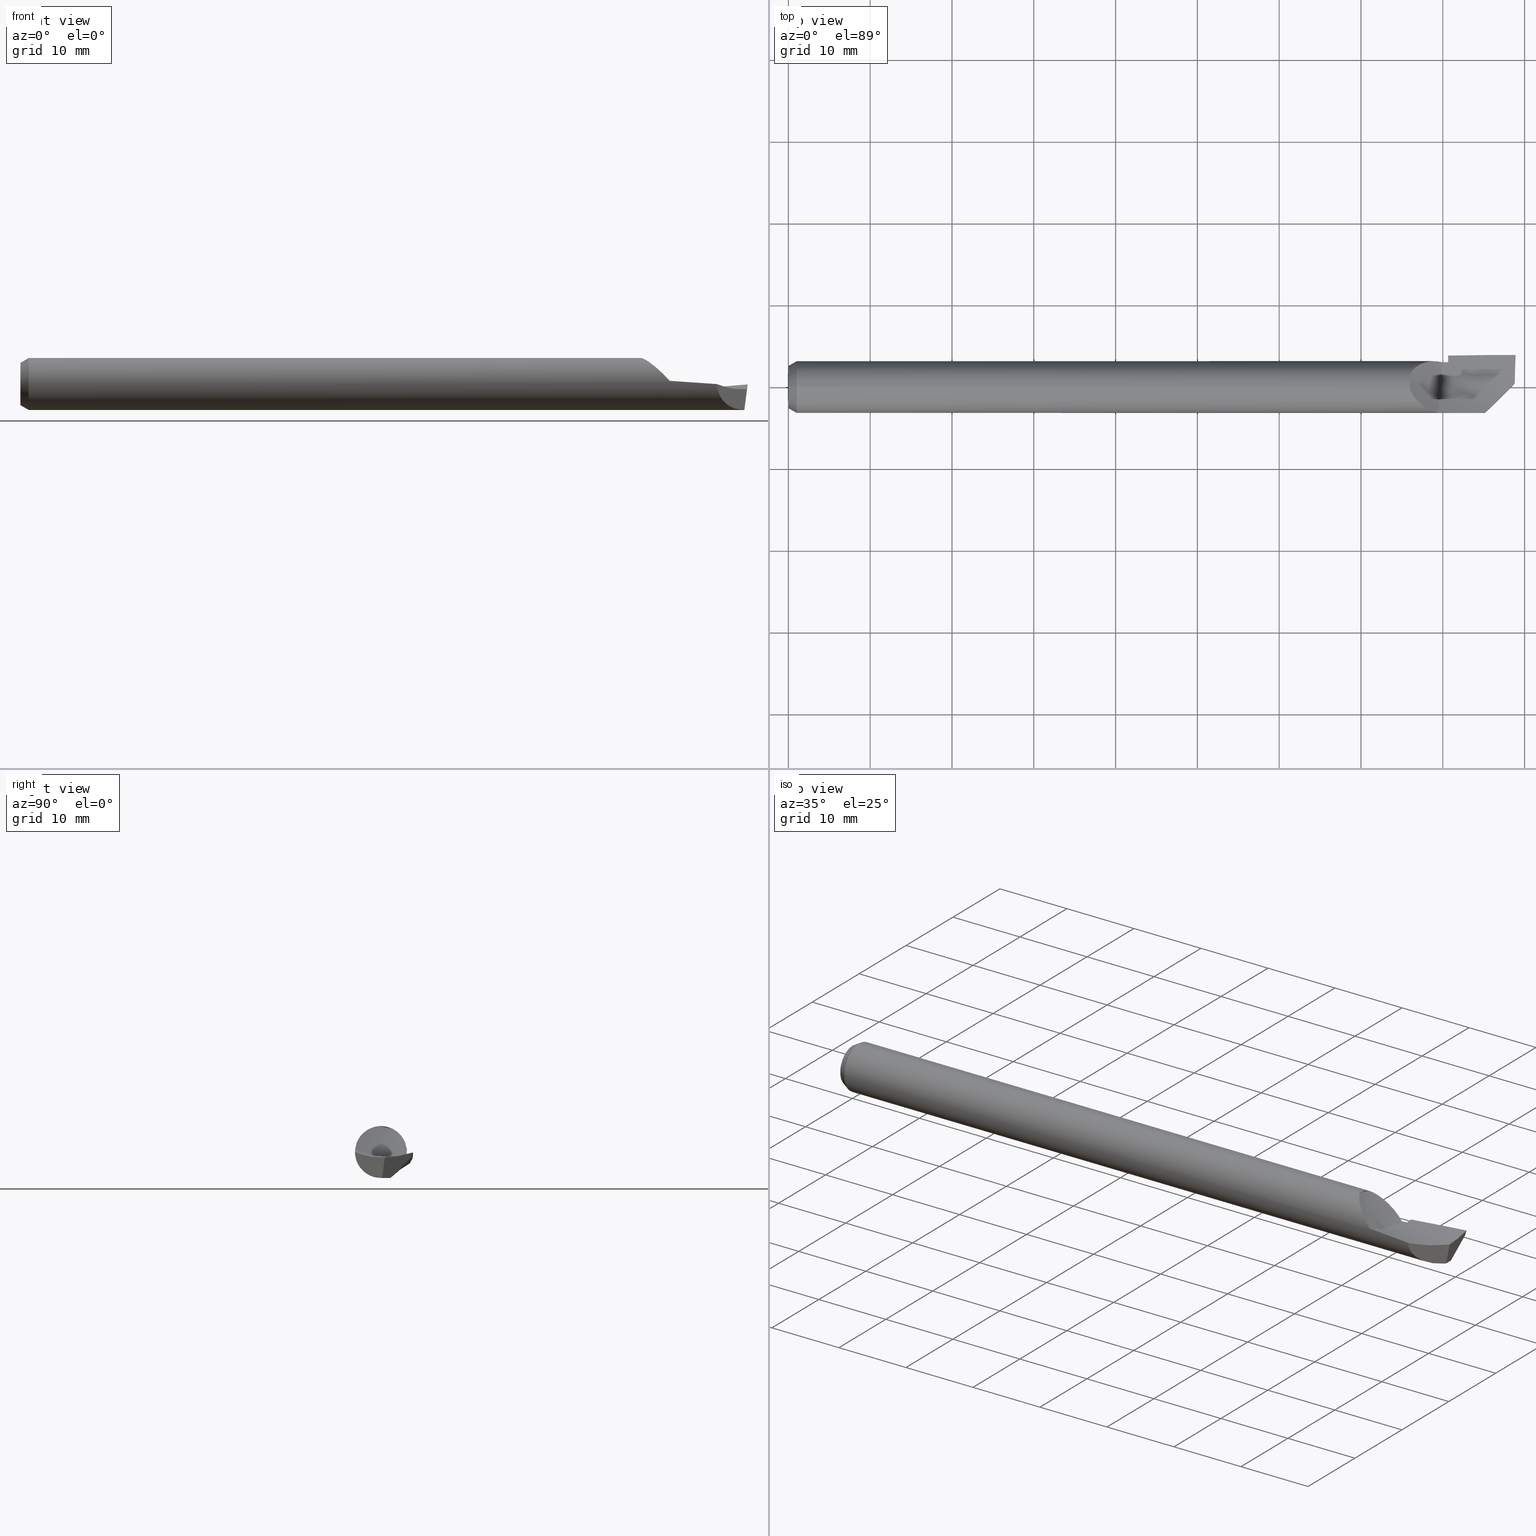
[diagram: canonical four-view strip — front | top / right | iso, engineering-drawing reading convention]
A machine part, canonical four-view strip (front | top / right | iso — engineering-drawing reading convention). The complete STEP part file that produces these views, byte-faithful:
ISO-10303-21;
HEADER;
FILE_DESCRIPTION (( 'STEP AP203' ),
    '1' );
FILE_NAME ('215769-HB300L.STEP',
    '2024-08-07T16:23:39',
    ( '' ),
    ( '' ),
    'SwSTEP 2.0',
    'SolidWorks 2024',
    '' );
FILE_SCHEMA (( 'CONFIG_CONTROL_DESIGN' ));
ENDSEC;

DATA;
#1 = CARTESIAN_POINT ( 'NONE',  ( 3.497552146914823190, 0.1480961311717815254, -0.02138191338948352074 ) ) ;
#2 = ORIENTED_EDGE ( 'NONE', *, *, #626, .F. ) ;
#3 = CARTESIAN_POINT ( 'NONE',  ( 3.483951795194291101, 0.04617583863440933439, -0.1248999999999999971 ) ) ;
#4 = ADVANCED_FACE ( 'NONE', ( #531 ), #248, .F. ) ;
#5 = ORIENTED_EDGE ( 'NONE', *, *, #636, .F. ) ;
#6 = CARTESIAN_POINT ( 'NONE',  ( 2.603896103896105707, 0.1303942975888330580, -0.08379932670561762720 ) ) ;
#7 = APPROVAL ( #205, 'UNSPECIFIED' ) ;
#8 = VERTEX_POINT ( 'NONE', #120 ) ;
#9 = CARTESIAN_POINT ( 'NONE',  ( 3.175000000000001155, 0.09055362798966817839, -0.08602354595091822598 ) ) ;
#10 = DIRECTION ( 'NONE',  ( 0.1218739150664907706, 0.000000000000000000, 0.9925455903012041503 ) ) ;
#11 = CARTESIAN_POINT ( 'NONE',  ( 3.094042376239798831, -0.1152339174047414261, 0.04819054716353866896 ) ) ;
#12 =( CONVERSION_BASED_UNIT ( 'INCH', #180 ) LENGTH_UNIT ( ) NAMED_UNIT ( #54 ) );
#13 = CARTESIAN_POINT ( 'NONE',  ( 3.060351242161530205, 0.1169295297306296999, 0.04390447595362416411 ) ) ;
#14 = CARTESIAN_POINT ( 'NONE',  ( 3.382175925925926308, -0.2049062689069249821, 0.03163384036012240746 ) ) ;
#15 = CARTESIAN_POINT ( 'NONE',  ( 3.023638633355623107, -0.06361765913626959978, 0.1074965029286738816 ) ) ;
#16 = PERSON_AND_ORGANIZATION ( #65, #662 ) ;
#17 = CARTESIAN_POINT ( 'NONE',  ( 3.368526356736285976, 0.1544538597704816496, -0.01300020007539798468 ) ) ;
#18 = EDGE_CURVE ( 'NONE', #201, #199, #127, .T. ) ;
#19 = DIRECTION ( 'NONE',  ( -1.000000000000000000, -0.000000000000000000, -0.000000000000000000 ) ) ;
#20 = MECHANICAL_CONTEXT ( 'NONE', #669, 'mechanical' ) ;
#21 = LOCAL_TIME ( 9, 23, 39.00000000000000000, #692 ) ;
#22 = CARTESIAN_POINT ( 'NONE',  ( 3.174999999999999822, 0.1386039659307288785, -0.05465158724221473585 ) ) ;
#23 = CARTESIAN_POINT ( 'NONE',  ( 3.174999999999997602, 0.1521864994767998247, -0.02949699750063330961 ) ) ;
#24 = CARTESIAN_POINT ( 'NONE',  ( 3.021802749776972608, -0.06152602861034239118, 0.1087149189610005506 ) ) ;
#25 = DATE_AND_TIME ( #470, #21 ) ;
#26 = CARTESIAN_POINT ( 'NONE',  ( 3.500000000000000000, 0.1549999999999999989, 0.000000000000000000 ) ) ;
#27 = ORIENTED_EDGE ( 'NONE', *, *, #340, .T. ) ;
#28 = CARTESIAN_POINT ( 'NONE',  ( 3.495849975684604871, 0.01839969785906810096, -0.02602668210670665283 ) ) ;
#29 = EDGE_CURVE ( 'NONE', #499, #589, #637, .T. ) ;
#30 = ORIENTED_EDGE ( 'NONE', *, *, #285, .F. ) ;
#31 = B_SPLINE_CURVE_WITH_KNOTS ( 'NONE', 3,
 ( #118, #337, #288, #55, #675, #507, #225 ),
 .UNSPECIFIED., .F., .F.,
 ( 4, 3, 4 ),
 ( 0.000000000000000000, 0.001349089807550986732, 0.003351331494114775499 ),
 .UNSPECIFIED. ) ;
#32 = AXIS2_PLACEMENT_3D ( 'NONE', #428, #185, #135 ) ;
#33 = CARTESIAN_POINT ( 'NONE',  ( 0.000000000000000000, 0.000000000000000000, 0.000000000000000000 ) ) ;
#34 = DIRECTION ( 'NONE',  ( 0.000000000000000000, 0.000000000000000000, 1.000000000000000000 ) ) ;
#35 = PLANE ( 'NONE',  #453 ) ;
#36 = CARTESIAN_POINT ( 'NONE',  ( 3.013159567584972276, 0.08955409253617904741, 0.08708879624686161058 ) ) ;
#37 = VECTOR ( 'NONE', #476, 39.37007874015748143 ) ;
#38 = CARTESIAN_POINT ( 'NONE',  ( 3.338857864376268303, -0.1385924134492668436, -0.1499999999999999944 ) ) ;
#39 = ORIENTED_EDGE ( 'NONE', *, *, #718, .F. ) ;
#40 = PRODUCT_DEFINITION_FORMATION_WITH_SPECIFIED_SOURCE ( 'ANY', '', #541, .NOT_KNOWN. ) ;
#41 = CARTESIAN_POINT ( 'NONE',  ( 3.174999999999998934, 0.1416853864997684731, -0.03091978158275687782 ) ) ;
#42 = VERTEX_POINT ( 'NONE', #194 ) ;
#43 = ADVANCED_FACE ( 'NONE', ( #374 ), #301, .T. ) ;
#44 =( BOUNDED_CURVE ( )  B_SPLINE_CURVE ( 2, ( #358, #521, #574 ),
 .UNSPECIFIED., .F., .F. ) 
 B_SPLINE_CURVE_WITH_KNOTS ( ( 3, 3 ),
 ( 0.02873534713698542783, 0.03143753000647300788 ),
 .UNSPECIFIED. ) 
 CURVE ( )  GEOMETRIC_REPRESENTATION_ITEM ( )  RATIONAL_B_SPLINE_CURVE ( ( 0.9698469433659832051, 0.9697818586907493987, 0.9697867123744317031 ) ) 
 REPRESENTATION_ITEM ( '' )  );
#45 = CARTESIAN_POINT ( 'NONE',  ( 3.015572442172250955, 0.09174419123815412414, 0.08479956588348636082 ) ) ;
#46 = ORIENTED_EDGE ( 'NONE', *, *, #163, .T. ) ;
#47 = UNCERTAINTY_MEASURE_WITH_UNIT (LENGTH_MEASURE( 1.000000000000000082E-05 ), #12, 'distance_accuracy_value', 'NONE');
#48 = DATE_TIME_ROLE ( 'creation_date' ) ;
#49 = PLANE ( 'NONE',  #687 ) ;
#50 = EDGE_LOOP ( 'NONE', ( #5, #109, #400, #533, #221, #649, #723, #511, #609, #392, #262 ) ) ;
#51 = CARTESIAN_POINT ( 'NONE',  ( 2.991000401229258809, -0.1928528710844065464, 0.07490772952600192880 ) ) ;
#52 = ORIENTED_EDGE ( 'NONE', *, *, #478, .T. ) ;
#53 = CARTESIAN_POINT ( 'NONE',  ( 3.028703703703703454, -0.1943805196971731819, 0.07084921587778005014 ) ) ;
#54 = DIMENSIONAL_EXPONENTS ( 1.000000000000000000, 0.000000000000000000, 0.000000000000000000, 0.000000000000000000, 0.000000000000000000, 0.000000000000000000, 0.000000000000000000 ) ;
#55 = CARTESIAN_POINT ( 'NONE',  ( 3.447074638142893388, 0.1545084763008415518, -0.006361513282307071880 ) ) ;
#56 = EDGE_LOOP ( 'NONE', ( #385, #208, #314, #431, #160 ) ) ;
#57 = AXIS2_PLACEMENT_3D ( 'NONE', #480, #286, #524 ) ;
#58 =( BOUNDED_SURFACE ( )  B_SPLINE_SURFACE ( 1, 2, ( 
 ( #26, #70, #467, #427, #144 ),
 ( #300, #74, #689, #373, #415 ) ),
 .UNSPECIFIED., .F., .F., .F. ) 
 B_SPLINE_SURFACE_WITH_KNOTS ( ( 2, 2 ),
 ( 3, 2, 3 ),
 ( 0.000000000000000000, 1.000000000000000000 ),
 ( 0.000000000000000000, 0.5000000000000000000, 1.000000000000000000 ),
 .UNSPECIFIED. ) 
 GEOMETRIC_REPRESENTATION_ITEM ( )  RATIONAL_B_SPLINE_SURFACE ( (
 ( 1.000000000000000000, 0.9898214418809326842, 1.000000000000000000, 0.9898214418809326842, 1.000000000000000000),
 ( 1.000000000000000000, 0.9898214418809326842, 1.000000000000000000, 0.9898214418809326842, 1.000000000000000000) ) ) 
 REPRESENTATION_ITEM ( '' )  SURFACE ( )  );
#59 = ORIENTED_EDGE ( 'NONE', *, *, #602, .F. ) ;
#60 = CC_DESIGN_APPROVAL ( #444, ( #40 ) ) ;
#61 = CARTESIAN_POINT ( 'NONE',  ( 3.233539183390295335, 0.03388346667231119380, -0.1249000000000000526 ) ) ;
#62 = EDGE_CURVE ( 'NONE', #307, #344, #485, .T. ) ;
#63 = APPROVAL ( #410, 'UNSPECIFIED' ) ;
#64 = CARTESIAN_POINT ( 'NONE',  ( 3.174999999999997602, 0.1521864994767998247, -0.02949699750063330961 ) ) ;
#65 = PERSON ( 'UNSPECIFIED', 'UNSPECIFIED', 'UNSPECIFIED', ('UNSPECIFIED'), ('UNSPECIFIED'), ('UNSPECIFIED') ) ;
#66 = VECTOR ( 'NONE', #312, 39.37007874015748854 ) ;
#67 = CARTESIAN_POINT ( 'NONE',  ( 3.051948051948052854, 0.2025605025226442923, 0.1396905609473088616 ) ) ;
#68 = CYLINDRICAL_SURFACE ( 'NONE', #700, 0.1248999999999999971 ) ;
#69 = CARTESIAN_POINT ( 'NONE',  ( 3.164993681968681916, 0.04158297014477048414, -0.1177773303377043640 ) ) ;
#70 = CARTESIAN_POINT ( 'NONE',  ( 3.275974025974025761, 0.1549999999999999711, -0.02228563556922086644 ) ) ;
#71 = CARTESIAN_POINT ( 'NONE',  ( 3.122046472584371291, -0.1234776257476574712, 0.01919930138644435069 ) ) ;
#72 = CARTESIAN_POINT ( 'NONE',  ( 3.496649869797824550, 0.06458745176308582081, -0.02279496812936753977 ) ) ;
#73 = EDGE_CURVE ( 'NONE', #42, #201, #711, .T. ) ;
#74 = CARTESIAN_POINT ( 'NONE',  ( 3.275974025974025761, 0.1432825502443031418, -0.04611772557897757946 ) ) ;
#75 = CARTESIAN_POINT ( 'NONE',  ( 3.052279218380861359, -0.09052906584526929090, 0.08604942616162131186 ) ) ;
#76 = CARTESIAN_POINT ( 'NONE',  ( 3.352769140823674388, -0.1246811370018606202, -0.07336456819902978377 ) ) ;
#77 = CARTESIAN_POINT ( 'NONE',  ( 3.092052141534185505, 0.1240269611545397332, 0.01494308968733345892 ) ) ;
#78 = CARTESIAN_POINT ( 'NONE',  ( 3.138134047346899269, 0.03602737292293302362, -0.03428177899336793538 ) ) ;
#79 = CARTESIAN_POINT ( 'NONE',  ( 3.174999999999999822, 0.000000000000000000, 0.000000000000000000 ) ) ;
#80 = CARTESIAN_POINT ( 'NONE',  ( 3.107989277156481212, -0.1202108462596435112, 0.03406404363466659924 ) ) ;
#81 = PERSON_AND_ORGANIZATION ( #65, #662 ) ;
#82 = DIRECTION ( 'NONE',  ( 0.000000000000000000, 0.000000000000000000, 1.000000000000000000 ) ) ;
#83 = EDGE_LOOP ( 'NONE', ( #30, #97, #103, #566 ) ) ;
#84 = ADVANCED_FACE ( 'NONE', ( #463 ), #35, .F. ) ;
#85 = CARTESIAN_POINT ( 'NONE',  ( 3.144404332545035263, 0.1199521406065451878, -0.03480652185880706018 ) ) ;
#86 = VERTEX_POINT ( 'NONE', #708 ) ;
#87 = CARTESIAN_POINT ( 'NONE',  ( 3.097980661279803982, 0.1245561299189576893, 0.009418666560764303933 ) ) ;
#88 = ORIENTED_EDGE ( 'NONE', *, *, #29, .F. ) ;
#89 = CARTESIAN_POINT ( 'NONE',  ( 3.495849975684604871, 0.01839969785906810096, -0.02602668210670665283 ) ) ;
#90 = ORIENTED_EDGE ( 'NONE', *, *, #278, .F. ) ;
#91 = VECTOR ( 'NONE', #177, 39.37007874015748854 ) ;
#92 = PERSON_AND_ORGANIZATION_ROLE ( 'design_supplier' ) ;
#93 = CARTESIAN_POINT ( 'NONE',  ( 3.009862924295793274, 0.05902391015881291308, -0.06016745377421905266 ) ) ;
#94 = CARTESIAN_POINT ( 'NONE',  ( 3.174999999999999822, 0.000000000000000000, 0.000000000000000000 ) ) ;
#95 = CARTESIAN_POINT ( 'NONE',  ( 3.155000000000000249, 0.1378861526196489551, -0.05643814557168721352 ) ) ;
#96 = VECTOR ( 'NONE', #19, 39.37007874015748143 ) ;
#97 = ORIENTED_EDGE ( 'NONE', *, *, #73, .F. ) ;
#98 = APPROVAL_DATE_TIME ( #724, #444 ) ;
#99 = PLANE ( 'NONE',  #251 ) ;
#100 = AXIS2_PLACEMENT_3D ( 'NONE', #114, #457, #122 ) ;
#101 = CARTESIAN_POINT ( 'NONE',  ( 0.04000000000000000083, 1.529583852135044220E-17, -0.1248999999999999971 ) ) ;
#102 = APPLICATION_CONTEXT ( 'configuration controlled 3d designs of mechanical parts and assemblies' ) ;
#103 = ORIENTED_EDGE ( 'NONE', *, *, #157, .F. ) ;
#104 = DATE_AND_TIME ( #659, #220 ) ;
#105 = DIRECTION ( 'NONE',  ( -0.7071067811865461294, 0.7071067811865490160, 0.000000000000000000 ) ) ;
#106 = ADVANCED_FACE ( 'NONE', ( #682 ), #260, .T. ) ;
#107 = DIRECTION ( 'NONE',  ( 0.000000000000000000, -0.2181432413965428696, -0.9759167619387472126 ) ) ;
#108 = COORDINATED_UNIVERSAL_TIME_OFFSET ( 8, 0, .BEHIND. ) ;
#109 = ORIENTED_EDGE ( 'NONE', *, *, #137, .T. ) ;
#110 = CARTESIAN_POINT ( 'NONE',  ( 3.410240183496790589, 0.04250226460936465389, -0.1248999999999999833 ) ) ;
#111 = ORIENTED_EDGE ( 'NONE', *, *, #62, .F. ) ;
#112 = CARTESIAN_POINT ( 'NONE',  ( 3.264351851851850395, -0.1247678007292974400, 0.005745076254874972692 ) ) ;
#113 = VERTEX_POINT ( 'NONE', #543 ) ;
#114 = CARTESIAN_POINT ( 'NONE',  ( 3.174999999999999822, 0.000000000000000000, 0.000000000000000000 ) ) ;
#115 = VERTEX_POINT ( 'NONE', #319 ) ;
#116 = PRODUCT_RELATED_PRODUCT_CATEGORY ( 'detail', '', ( #541 ) ) ;
#117 = B_SPLINE_CURVE_WITH_KNOTS ( 'NONE', 3,
 ( #17, #237, #184, #419 ),
 .UNSPECIFIED., .F., .F.,
 ( 4, 4 ),
 ( 3.064378095414602570E-16, 0.004933731975051895355 ),
 .UNSPECIFIED. ) ;
#118 = CARTESIAN_POINT ( 'NONE',  ( 3.500000000000000000, 0.1543847790791963714, -0.001893455299683104338 ) ) ;
#119 = EDGE_CURVE ( 'NONE', #86, #307, #727, .T. ) ;
#120 = CARTESIAN_POINT ( 'NONE',  ( 3.125460231133434963, -0.1239539591572526162, 0.01534359831467680020 ) ) ;
#121 = B_SPLINE_CURVE_WITH_KNOTS ( 'NONE', 3,
 ( #154, #705, #599, #146, #550, #36, #45, #256, #486, #495, #384, #709, #436, #654, #234, #591, #580, #631, #189, #242, #128, #13, #412, #181, #641, #702, #134, #646, #367, #140, #634, #77, #586, #87, #291, #475, #471, #465, #232, #362, #479, #246 ),
 .UNSPECIFIED., .F., .F.,
 ( 4, 2, 2, 1, 1, 1, 1, 2, 2, 2, 2, 1, 1, 1, 1, 1, 2, 2, 2, 2, 2, 1, 1, 1, 2, 2, 4 ),
 ( 0.000000000000000000, 0.1249999999994285682, 0.1874999999991447397, 0.2187499999990028809, 0.2343749999989318822, 0.2421874999988963550, 0.2460937499988766208, 0.2480468749988667398, 0.2499999999988568311, 0.3749999999981504795, 0.4374999999977973175, 0.4687499999976207921, 0.4843749999975303089, 0.4921874999974871767, 0.4960937499974656384, 0.4980468749974548692, 0.4990234374974494291, 0.4999999999974440446, 0.6249999999979299892, 0.6874999999981754595, 0.7187499999983002485, 0.7343749999983625321, 0.7421874999983953947, 0.7460937499984133803, 0.7480468749984239274, 0.7499999999984345855, 1.000000000000000000 ),
 .UNSPECIFIED. ) ;
#122 = DIRECTION ( 'NONE',  ( 0.000000000000000000, 0.000000000000000000, -1.000000000000000000 ) ) ;
#123 = AXIS2_PLACEMENT_3D ( 'NONE', #318, #502, #552 ) ;
#124 = ORIENTED_EDGE ( 'NONE', *, *, #478, .F. ) ;
#125 = CARTESIAN_POINT ( 'NONE',  ( 3.057716736039519656, -0.09462296381664606071, 0.08153854661798716486 ) ) ;
#126 = CARTESIAN_POINT ( 'NONE',  ( 3.477450277825535618, -3.414809992080329023E-17, -0.1248999999999999971 ) ) ;
#127 = CIRCLE ( 'NONE', #57, 0.1248999999999999971 ) ;
#128 = CARTESIAN_POINT ( 'NONE',  ( 3.059456858033632543, 0.1166230789619448899, 0.04471572362713241433 ) ) ;
#129 = CARTESIAN_POINT ( 'NONE',  ( 0.04000000000000000083, 0.000000000000000000, 0.000000000000000000 ) ) ;
#130 = ADVANCED_FACE ( 'NONE', ( #302 ), #477, .T. ) ;
#131 = APPROVAL_PERSON_ORGANIZATION ( #492, #7, #668 ) ;
#132 = CARTESIAN_POINT ( 'NONE',  ( 3.089249625378090780, -0.1131532683183247012, 0.05288326354203787966 ) ) ;
#133 =( BOUNDED_CURVE ( )  B_SPLINE_CURVE ( 1, ( #22, #212 ),
 .UNSPECIFIED., .F., .T. ) 
 B_SPLINE_CURVE_WITH_KNOTS ( ( 2, 2 ),
 ( 0.000000000000000000, 0.0006676785123912984442 ),
 .UNSPECIFIED. ) 
 CURVE ( )  GEOMETRIC_REPRESENTATION_ITEM ( )  RATIONAL_B_SPLINE_CURVE ( ( 0.9959362357333982896, 0.9959362357333982896 ) ) 
 REPRESENTATION_ITEM ( '' )  );
#134 = CARTESIAN_POINT ( 'NONE',  ( 3.063536984851126910, 0.1179943198108090313, 0.04101498454096539487 ) ) ;
#135 = DIRECTION ( 'NONE',  ( 0.000000000000000000, 0.000000000000000000, -1.000000000000000000 ) ) ;
#136 = CARTESIAN_POINT ( 'NONE',  ( 3.064392158006249645, -0.09929563577276420694, 0.07583891807140831498 ) ) ;
#137 = EDGE_CURVE ( 'NONE', #307, #223, #409, .T. ) ;
#138 = ADVANCED_FACE ( 'NONE', ( #635 ), #730, .T. ) ;
#139 = CARTESIAN_POINT ( 'NONE',  ( 2.991000401229262806, -0.007837075751874379367, 0.1161530714709115841 ) ) ;
#140 = CARTESIAN_POINT ( 'NONE',  ( 3.082629254565365962, 0.1227126659657724189, 0.02367513149059939301 ) ) ;
#141 = CARTESIAN_POINT ( 'NONE',  ( 2.603896103896105707, -0.09875945523444670804, -0.1458616250651792734 ) ) ;
#142 = LINE ( 'NONE', #466, #601 ) ;
#143 = CC_DESIGN_PERSON_AND_ORGANIZATION_ASSIGNMENT ( #253, #382, ( #546 ) ) ;
#144 = CARTESIAN_POINT ( 'NONE',  ( 2.603896103896105707, 0.1303942975888330580, -0.08379932670561762720 ) ) ;
#145 = ORIENTED_EDGE ( 'NONE', *, *, #496, .T. ) ;
#146 = CARTESIAN_POINT ( 'NONE',  ( 3.005712418283758680, 0.08203240738333091031, 0.09427124872229240837 ) ) ;
#147 = ORIENTED_EDGE ( 'NONE', *, *, #278, .T. ) ;
#148 = CARTESIAN_POINT ( 'NONE',  ( 3.146527777777776702, 0.2061116974606637953, -0.02247770146546296602 ) ) ;
#149 = CARTESIAN_POINT ( 'NONE',  ( 2.603896103896105707, 0.1100447810938841031, -0.1004390437719276802 ) ) ;
#150 = CARTESIAN_POINT ( 'NONE',  ( 3.471497664198065269, -0.005952613627472089740, -0.02710709261241137091 ) ) ;
#151 = EDGE_LOOP ( 'NONE', ( #167, #283, #228, #39 ) ) ;
#152 = CARTESIAN_POINT ( 'NONE',  ( 3.497062845638897688, 0.1468296269680836319, -0.02527678785434345904 ) ) ;
#153 = FACE_OUTER_BOUND ( 'NONE', #151, .T. ) ;
#154 = CARTESIAN_POINT ( 'NONE',  ( 2.991000401229259253, 0.05945250750572621951, 0.1098426572479087732 ) ) ;
#155 = CIRCLE ( 'NONE', #100, 0.1248999999999999971 ) ;
#156 = ORIENTED_EDGE ( 'NONE', *, *, #523, .F. ) ;
#157 = EDGE_CURVE ( 'NONE', #8, #42, #316, .T. ) ;
#158 = DIRECTION ( 'NONE',  ( 1.000000000000000000, 0.000000000000000000, 0.000000000000000000 ) ) ;
#159 = LOCAL_TIME ( 9, 23, 39.00000000000000000, #442 ) ;
#160 = ORIENTED_EDGE ( 'NONE', *, *, #523, .T. ) ;
#161 = CARTESIAN_POINT ( 'NONE',  ( 3.500000000000000000, 0.1543847790791963714, -0.001893455299683104338 ) ) ;
#162 = APPROVAL_DATE_TIME ( #104, #7 ) ;
#163 = EDGE_CURVE ( 'NONE', #623, #223, #142, .T. ) ;
#164 = AXIS2_PLACEMENT_3D ( 'NONE', #247, #422, #642 ) ;
#165 = CARTESIAN_POINT ( 'NONE',  ( 3.483951795194291101, 0.04617583863440933439, -0.1248999999999999971 ) ) ;
#166 = B_SPLINE_CURVE_WITH_KNOTS ( 'NONE', 3,
 ( #570, #396, #61, #504, #275, #110, #3 ),
 .UNSPECIFIED., .F., .F.,
 ( 4, 3, 4 ),
 ( 0.0005087107713289569771, 0.002741740549851240383, 0.008365536532883317139 ),
 .UNSPECIFIED. ) ;
#167 = ORIENTED_EDGE ( 'NONE', *, *, #508, .F. ) ;
#168 = PLANE ( 'NONE',  #734 ) ;
#169 = ORIENTED_EDGE ( 'NONE', *, *, #18, .T. ) ;
#170 =( BOUNDED_CURVE ( )  B_SPLINE_CURVE ( 2, ( #433, #614, #269 ),
 .UNSPECIFIED., .F., .T. ) 
 B_SPLINE_CURVE_WITH_KNOTS ( ( 3, 3 ),
 ( 0.6154841053960781183, 0.6377767502489465334 ),
 .UNSPECIFIED. ) 
 CURVE ( )  GEOMETRIC_REPRESENTATION_ITEM ( )  RATIONAL_B_SPLINE_CURVE ( ( 0.9963841304086362705, 0.9961399496440248580, 0.9959362357333968463 ) ) 
 REPRESENTATION_ITEM ( '' )  );
#171 = CARTESIAN_POINT ( 'NONE',  ( 3.308407065166079075, -0.1249085961250403776, 0.002687374128684246171 ) ) ;
#172 = EDGE_LOOP ( 'NONE', ( #509, #587, #441 ) ) ;
#173 = ORIENTED_EDGE ( 'NONE', *, *, #211, .T. ) ;
#174 = CARTESIAN_POINT ( 'NONE',  ( 3.500000000000000000, 0.1543847790791963714, -0.001893455299683104338 ) ) ;
#175 = DIRECTION ( 'NONE',  ( 0.000000000000000000, -1.000000000000000000, -0.000000000000000000 ) ) ;
#176 = CARTESIAN_POINT ( 'NONE',  ( 3.124638797418811897, -0.1356850508158248814, 0.02141049424412449012 ) ) ;
#177 = DIRECTION ( 'NONE',  ( 0.1220122463319277539, 0.1220122463319272405, 0.9850005195379716305 ) ) ;
#178 = AXIS2_PLACEMENT_3D ( 'NONE', #685, #309, #82 ) ;
#179 = CARTESIAN_POINT ( 'NONE',  ( 3.073574048085152999, -0.1051623276853832639, 0.06771642302151673065 ) ) ;
#180 = LENGTH_MEASURE_WITH_UNIT ( LENGTH_MEASURE( 0.02539999999999999897 ), #645 );
#181 = CARTESIAN_POINT ( 'NONE',  ( 3.060993577853104330, 0.1171461910606215739, 0.04332186279367256088 ) ) ;
#182 = CARTESIAN_POINT ( 'NONE',  ( 3.017939480705743360, -0.05688737499463081271, 0.1111928313433849236 ) ) ;
#183 = APPROVAL_PERSON_ORGANIZATION ( #16, #63, #236 ) ;
#184 = CARTESIAN_POINT ( 'NONE',  ( 3.239509584057660430, 0.1532295747175122236, -0.02404851664924140264 ) ) ;
#185 = DIRECTION ( 'NONE',  ( 1.000000000000000000, 0.000000000000000000, 0.000000000000000000 ) ) ;
#186 = CARTESIAN_POINT ( 'NONE',  ( 3.056491468869813932, -0.09372617704281617501, 0.08256578760473144707 ) ) ;
#187 = ADVANCED_FACE ( 'NONE', ( #370 ), #68, .T. ) ;
#188 = CARTESIAN_POINT ( 'NONE',  ( 3.495849975684604871, 0.01839969785906810096, -0.02602668210670665283 ) ) ;
#189 = CARTESIAN_POINT ( 'NONE',  ( 3.054209512856410846, 0.1147115061212685694, 0.04947554016240530983 ) ) ;
#190 = CARTESIAN_POINT ( 'NONE',  ( 3.128730994819307387, -0.08680158210580826705, -0.003279838997927689900 ) ) ;
#191 = CARTESIAN_POINT ( 'NONE',  ( 2.827922077922078614, 0.1244857354578983305, -0.08461699288319869672 ) ) ;
#192 = CARTESIAN_POINT ( 'NONE',  ( 3.019766801426896130, -0.05911167225763985095, 0.1100312609802526626 ) ) ;
#193 = CARTESIAN_POINT ( 'NONE',  ( 3.174999999999999822, 0.04233146308355638376, -0.1175076901027135440 ) ) ;
#194 = CARTESIAN_POINT ( 'NONE',  ( 2.991000401229259253, -0.01130295429703349896, 0.1243875123320631881 ) ) ;
#195 = CARTESIAN_POINT ( 'NONE',  ( 0.04000000000000000083, 0.000000000000000000, 0.000000000000000000 ) ) ;
#196 = VERTEX_POINT ( 'NONE', #9 ) ;
#197 = APPROVAL_ROLE ( '' ) ;
#198 = CARTESIAN_POINT ( 'NONE',  ( 3.125460231133434963, -0.1239539591572526162, 0.01534359831467680020 ) ) ;
#199 = VERTEX_POINT ( 'NONE', #683 ) ;
#200 = DIRECTION ( 'NONE',  ( 1.000000000000000000, 0.000000000000000000, 0.000000000000000000 ) ) ;
#201 = VERTEX_POINT ( 'NONE', #355 ) ;
#202 = LINE ( 'NONE', #713, #671 ) ;
#203 = EDGE_CURVE ( 'NONE', #342, #623, #214, .T. ) ;
#204 = ORIENTED_EDGE ( 'NONE', *, *, #62, .T. ) ;
#205 = APPROVAL_STATUS ( 'not_yet_approved' ) ;
#206 = CARTESIAN_POINT ( 'NONE',  ( 3.174999999999999822, 0.1386039659307288785, -0.05465158724221473585 ) ) ;
#207 = CARTESIAN_POINT ( 'NONE',  ( 3.264351851851851283, 0.2066970047796091170, -0.008930064018669539583 ) ) ;
#208 = ORIENTED_EDGE ( 'NONE', *, *, #732, .T. ) ;
#209 = CARTESIAN_POINT ( 'NONE',  ( 3.499999999999999112, -0.07302618588606765715, -0.04207541297911798067 ) ) ;
#210 = ORIENTED_EDGE ( 'NONE', *, *, #458, .F. ) ;
#211 = EDGE_CURVE ( 'NONE', #490, #487, #605, .T. ) ;
#212 = CARTESIAN_POINT ( 'NONE',  ( 3.174999999999999822, 0.1516914083929974399, -0.03185461692987146681 ) ) ;
#213 = CARTESIAN_POINT ( 'NONE',  ( 3.028703703703703454, 0.2037630759974631833, -0.03583303906022125562 ) ) ;
#214 = CIRCLE ( 'NONE', #451, 0.1018059892324148924 ) ;
#215 = CARTESIAN_POINT ( 'NONE',  ( 3.146527777777776702, -0.1990242226435472161, 0.05810884351300168310 ) ) ;
#216 = PRODUCT_DEFINITION_SHAPE ( 'NONE', 'NONE',  #529 ) ;
#217 = CLOSED_SHELL ( 'NONE', ( #238, #43, #187, #84, #4, #488, #418, #138, #130, #525, #106, #559, #346, #690, #621, #518, #549 ) ) ;
#218 = VERTEX_POINT ( 'NONE', #89 ) ;
#219 = CARTESIAN_POINT ( 'NONE',  ( 3.174999999999998934, 0.1205259677332470303, -0.03276432666734185872 ) ) ;
#220 = LOCAL_TIME ( 9, 23, 39.00000000000000000, #315 ) ;
#221 = ORIENTED_EDGE ( 'NONE', *, *, #18, .F. ) ;
#222 = CARTESIAN_POINT ( 'NONE',  ( 3.498041560669338690, 0.1493589822304206838, -0.01748586325884638262 ) ) ;
#223 = VERTEX_POINT ( 'NONE', #101 ) ;
#224 = EDGE_CURVE ( 'NONE', #218, #113, #249, .T. ) ;
#225 = CARTESIAN_POINT ( 'NONE',  ( 3.368526356736285976, 0.1544538597704816496, -0.01300020007539798468 ) ) ;
#226 = EDGE_LOOP ( 'NONE', ( #169, #52, #618 ) ) ;
#227 = CARTESIAN_POINT ( 'NONE',  ( 3.500000000000000000, 0.1549999999999999989, 0.1911000000000000199 ) ) ;
#228 = ORIENTED_EDGE ( 'NONE', *, *, #224, .T. ) ;
#229 = CARTESIAN_POINT ( 'NONE',  ( 3.045023635571233900, -0.08485814535378853607, 0.09198779291974945593 ) ) ;
#230 = DIRECTION ( 'NONE',  ( -1.000000000000000000, -0.000000000000000000, -0.000000000000000000 ) ) ;
#231 =( BOUNDED_CURVE ( )  B_SPLINE_CURVE ( 2, ( #630, #69, #360 ),
 .UNSPECIFIED., .F., .T. ) 
 B_SPLINE_CURVE_WITH_KNOTS ( ( 3, 3 ),
 ( 0.3622232497511194693, 0.3845158946039529124 ),
 .UNSPECIFIED. ) 
 CURVE ( )  GEOMETRIC_REPRESENTATION_ITEM ( )  RATIONAL_B_SPLINE_CURVE ( ( 0.9959362357333982896, 0.9961399496440260792, 0.9963841304086371586 ) ) 
 REPRESENTATION_ITEM ( '' )  );
#232 = CARTESIAN_POINT ( 'NONE',  ( 3.102797602016997836, 0.1248031549621601705, 0.004919168521958743392 ) ) ;
#233 = CARTESIAN_POINT ( 'NONE',  ( 3.018775306208112852, -0.05791177294551826810, 0.1106638906131709038 ) ) ;
#234 = CARTESIAN_POINT ( 'NONE',  ( 3.032374988633280477, 0.1041527270385999571, 0.06928547170208708417 ) ) ;
#235 = CARTESIAN_POINT ( 'NONE',  ( 3.097074899590689157, -0.1164622586083399053, 0.04518020081075590361 ) ) ;
#236 = APPROVAL_ROLE ( '' ) ;
#237 = CARTESIAN_POINT ( 'NONE',  ( 3.304016763998687267, 0.1539883258885592909, -0.01853115379148042793 ) ) ;
#238 = ADVANCED_FACE ( 'NONE', ( #430 ), #728, .T. ) ;
#239 = CARTESIAN_POINT ( 'NONE',  ( 3.099015534102098179, -0.1171968619236710002, 0.04323073453867415372 ) ) ;
#240 = AXIS2_PLACEMENT_3D ( 'NONE', #33, #688, #308 ) ;
#241 = FACE_OUTER_BOUND ( 'NONE', #83, .T. ) ;
#242 = CARTESIAN_POINT ( 'NONE',  ( 3.057685084005004494, 0.1159995307715388502, 0.04632285640271501664 ) ) ;
#243 = DIRECTION ( 'NONE',  ( -1.000000000000000000, -0.000000000000000000, -0.000000000000000000 ) ) ;
#244 = CARTESIAN_POINT ( 'NONE',  ( 3.018077970623159523, -0.05705786498677481444, 0.1111054418968268759 ) ) ;
#245 = COORDINATED_UNIVERSAL_TIME_OFFSET ( 8, 0, .BEHIND. ) ;
#246 = CARTESIAN_POINT ( 'NONE',  ( 3.144404332545035263, 0.1199521406065451878, -0.03480652185880706018 ) ) ;
#247 = CARTESIAN_POINT ( 'NONE',  ( 0.04000000000000000083, 0.000000000000000000, 0.000000000000000000 ) ) ;
#248 = PLANE ( 'NONE',  #351 ) ;
#249 = B_SPLINE_CURVE_WITH_KNOTS ( 'NONE', 3,
 ( #28, #150, #325, #379, #261, #250 ),
 .UNSPECIFIED., .F., .F.,
 ( 4, 2, 4 ),
 ( 0.0001472854475436725691, 0.002741540513847501217, 0.005335795580151329702 ),
 .UNSPECIFIED. ) ;
#250 = CARTESIAN_POINT ( 'NONE',  ( 3.352550836444441629, -0.1248994413810938370, -0.0003735541335652321792 ) ) ;
#251 = AXIS2_PLACEMENT_3D ( 'NONE', #38, #105, #383 ) ;
#252 = ORIENTED_EDGE ( 'NONE', *, *, #203, .T. ) ;
#253 = PERSON_AND_ORGANIZATION ( #65, #662 ) ;
#254 = AXIS2_PLACEMENT_3D ( 'NONE', #648, #243, #593 ) ;
#255 = DIRECTION ( 'NONE',  ( 0.000000000000000000, 0.000000000000000000, -1.000000000000000000 ) ) ;
#256 = CARTESIAN_POINT ( 'NONE',  ( 3.018561227604406483, 0.09422468548347183448, 0.08199839772101800983 ) ) ;
#257 = VERTEX_POINT ( 'NONE', #85 ) ;
#258 = ORIENTED_EDGE ( 'NONE', *, *, #403, .T. ) ;
#259 = EDGE_CURVE ( 'NONE', #402, #381, #320, .T. ) ;
#260 =( BOUNDED_SURFACE ( )  B_SPLINE_SURFACE ( 1, 2, ( 
 ( #408, #627, #698, #191, #149 ),
 ( #378, #368, #598, #423, #141 ) ),
 .UNSPECIFIED., .F., .F., .F. ) 
 B_SPLINE_SURFACE_WITH_KNOTS ( ( 2, 2 ),
 ( 3, 2, 3 ),
 ( 0.000000000000000000, 1.000000000000000000 ),
 ( 0.000000000000000000, 0.5000000000000000000, 1.000000000000000000 ),
 .UNSPECIFIED. ) 
 GEOMETRIC_REPRESENTATION_ITEM ( )  RATIONAL_B_SPLINE_SURFACE ( (
 ( 1.000000000000000000, 0.9898214418809326842, 1.000000000000000000, 0.9898214418809326842, 1.000000000000000000),
 ( 1.000000000000000000, 0.9898214418809326842, 1.000000000000000000, 0.9898214418809326842, 1.000000000000000000) ) ) 
 REPRESENTATION_ITEM ( '' )  SURFACE ( )  );
#261 = CARTESIAN_POINT ( 'NONE',  ( 3.375956419575551148, -0.1014938582499846781, -0.01010188147978599918 ) ) ;
#262 = ORIENTED_EDGE ( 'NONE', *, *, #677, .F. ) ;
#263 = CARTESIAN_POINT ( 'NONE',  ( 3.490411918746795905, 0.09616398972739637063, -0.07584127346721108998 ) ) ;
#264 = CARTESIAN_POINT ( 'NONE',  ( 3.174999999999997602, 0.1521864994767998525, -0.02949699750063330961 ) ) ;
#265 = ORIENTED_EDGE ( 'NONE', *, *, #294, .F. ) ;
#266 = CARTESIAN_POINT ( 'NONE',  ( 3.499999999999999112, 0.07302618588606739347, -0.04207541297911802231 ) ) ;
#267 = EDGE_CURVE ( 'NONE', #589, #577, #561, .T. ) ;
#268 = VERTEX_POINT ( 'NONE', #489 ) ;
#269 = CARTESIAN_POINT ( 'NONE',  ( 3.175000000000001155, 0.09055362798966817839, -0.08602354595091822598 ) ) ;
#270 = CARTESIAN_POINT ( 'NONE',  ( 3.382175925925926308, -0.07578395415210027741, -0.03728902387995582796 ) ) ;
#271 = CC_DESIGN_PERSON_AND_ORGANIZATION_ASSIGNMENT ( #332, #92, ( #40 ) ) ;
#272 = ORIENTED_EDGE ( 'NONE', *, *, #664, .F. ) ;
#273 = DIRECTION ( 'NONE',  ( -0.7071067811865489050, -0.7071067811865460184, 0.000000000000000000 ) ) ;
#274 = CIRCLE ( 'NONE', #164, 0.1248999999999999971 ) ;
#275 = CARTESIAN_POINT ( 'NONE',  ( 3.336524325424050641, 0.03891431529137907852, -0.1249000000000000526 ) ) ;
#276 = ORIENTED_EDGE ( 'NONE', *, *, #555, .F. ) ;
#277 = CARTESIAN_POINT ( 'NONE',  ( 0.000000000000000000, 0.000000000000000000, 0.1248999999999999971 ) ) ;
#278 = EDGE_CURVE ( 'NONE', #342, #115, #202, .T. ) ;
#279 = CC_DESIGN_APPROVAL ( #7, ( #546 ) ) ;
#280 = ORIENTED_EDGE ( 'NONE', *, *, #361, .F. ) ;
#281 =( BOUNDED_CURVE ( )  B_SPLINE_CURVE ( 1, ( #333, #206 ),
 .UNSPECIFIED., .F., .F. ) 
 B_SPLINE_CURVE_WITH_KNOTS ( ( 2, 2 ),
 ( 0.003306797769692931127, 0.004764376004941983309 ),
 .UNSPECIFIED. ) 
 CURVE ( )  GEOMETRIC_REPRESENTATION_ITEM ( )  RATIONAL_B_SPLINE_CURVE ( ( 0.9959362357333982896, 0.9959362357333982896 ) ) 
 REPRESENTATION_ITEM ( '' )  );
#282 = CARTESIAN_POINT ( 'NONE',  ( 3.275974025974025761, 0.1824760319824393906, 0.1688143644307791569 ) ) ;
#283 = ORIENTED_EDGE ( 'NONE', *, *, #329, .T. ) ;
#284 = CARTESIAN_POINT ( 'NONE',  ( 2.999999999999999556, 0.000000000000000000, -0.1248999999999999971 ) ) ;
#285 = EDGE_CURVE ( 'NONE', #201, #257, #121, .T. ) ;
#286 = DIRECTION ( 'NONE',  ( 1.000000000000000000, 0.000000000000000000, 0.000000000000000000 ) ) ;
#287 = DIRECTION ( 'NONE',  ( 0.000000000000000000, 0.000000000000000000, 1.000000000000000000 ) ) ;
#288 = CARTESIAN_POINT ( 'NONE',  ( 3.464716405765519980, 0.1544888050678094593, -0.004871487012182728650 ) ) ;
#289 = CARTESIAN_POINT ( 'NONE',  ( 2.991000401229259253, 0.09823035653344343310, -0.04398266763496447296 ) ) ;
#290 = CARTESIAN_POINT ( 'NONE',  ( 3.404458937304163602, -0.07299134052137161432, -0.1249000000000000110 ) ) ;
#291 = CARTESIAN_POINT ( 'NONE',  ( 3.100424267437243309, 0.1246990184371287308, 0.007136783712175319427 ) ) ;
#292 = CARTESIAN_POINT ( 'NONE',  ( 3.500000000000000000, -0.2060942905027398908, 0.01812570689412318012 ) ) ;
#293 = CARTESIAN_POINT ( 'NONE',  ( 3.061575566254704395, -0.09737599806823053761, 0.07826905176566188727 ) ) ;
#294 = EDGE_CURVE ( 'NONE', #223, #115, #349, .T. ) ;
#295 = CARTESIAN_POINT ( 'NONE',  ( 3.154997276976144960, 0.04082568376012370159, -0.1180392882669460269 ) ) ;
#296 = PLANE ( 'NONE',  #32 ) ;
#297 = DIRECTION ( 'NONE',  ( 1.000000000000000000, 0.000000000000000000, 0.000000000000000000 ) ) ;
#298 = CC_DESIGN_PERSON_AND_ORGANIZATION_ASSIGNMENT ( #650, #322, ( #40 ) ) ;
#299 = CARTESIAN_POINT ( 'NONE',  ( 3.500000000000000000, 0.1543847790791963714, -0.001893455299683104338 ) ) ;
#300 = CARTESIAN_POINT ( 'NONE',  ( 3.500000000000000000, 0.1468770075941775166, -0.02500000000000000139 ) ) ;
#301 = CYLINDRICAL_SURFACE ( 'NONE', #254, 0.1248999999999999971 ) ;
#302 = FACE_OUTER_BOUND ( 'NONE', #226, .T. ) ;
#303 = PERSON_AND_ORGANIZATION_ROLE ( 'creator' ) ;
#304 = CARTESIAN_POINT ( 'NONE',  ( 0.000000000000000000, 1.388173820305055888E-17, 0.1018059892324148924 ) ) ;
#305 = EDGE_LOOP ( 'NONE', ( #667, #252 ) ) ;
#306 = CARTESIAN_POINT ( 'NONE',  ( 3.483512001341336095, -0.004219545310947798653, -0.1248999999999999971 ) ) ;
#307 = VERTEX_POINT ( 'NONE', #519 ) ;
#308 = DIRECTION ( 'NONE',  ( 1.000000000000000000, 0.000000000000000000, 0.000000000000000000 ) ) ;
#309 = DIRECTION ( 'NONE',  ( -1.000000000000000000, -0.000000000000000000, -0.000000000000000000 ) ) ;
#310 = CARTESIAN_POINT ( 'NONE',  ( 2.991000401229259253, 0.03535457315286248681, 0.1122384643536407517 ) ) ;
#311 =( BOUNDED_CURVE ( )  B_SPLINE_CURVE ( 3, ( #126, #290, #76, #701 ),
 .UNSPECIFIED., .F., .T. ) 
 B_SPLINE_CURVE_WITH_KNOTS ( ( 4, 4 ),
 ( 4.712388980384689674, 6.280194476991621144 ),
 .UNSPECIFIED. ) 
 CURVE ( )  GEOMETRIC_REPRESENTATION_ITEM ( )  RATIONAL_B_SPLINE_CURVE ( ( 1.000000000000000000, 0.8054422722044622951, 0.8054422722044622951, 1.000000000000000000 ) ) 
 REPRESENTATION_ITEM ( '' )  );
#312 = DIRECTION ( 'NONE',  ( 0.000000000000000000, -0.8443279255020121887, -0.5358267949790009865 ) ) ;
#313 = VECTOR ( 'NONE', #544, 39.37007874015748854 ) ;
#314 = ORIENTED_EDGE ( 'NONE', *, *, #329, .F. ) ;
#315 = COORDINATED_UNIVERSAL_TIME_OFFSET ( 8, 0, .BEHIND. ) ;
#316 = B_SPLINE_CURVE_WITH_KNOTS ( 'NONE', 3,
 ( #522, #71, #576, #80, #628, #239, #235, #11, #526, #514, #583, #132, #424, #179, #136, #293, #125, #186, #473, #520, #694, #350, #75, #571, #468, #229, #420, #686, #413, #15, #24, #192, #233, #639, #244, #182, #644, #359, #691, #365 ),
 .UNSPECIFIED., .F., .F.,
 ( 4, 2, 2, 2, 1, 2, 2, 2, 2, 2, 1, 1, 1, 2, 2, 2, 2, 1, 1, 1, 1, 2, 2, 4 ),
 ( 0.000000000000000000, 0.1250000000001441902, 0.1875000000002137457, 0.2187500000002484679, 0.2343750000002639278, 0.2421875000002735312, 0.2500000000002831624, 0.3750000000003977929, 0.4375000000004576339, 0.4687500000004846124, 0.4843750000005013212, 0.4921875000005132006, 0.4960937500005156431, 0.4980468750005169198, 0.5000000000005182521, 0.6250000000003632650, 0.6875000000002833289, 0.7187500000002433609, 0.7343750000002232659, 0.7421875000002132738, 0.7460937500002083889, 0.7480468750002058353, 0.7500000000002032818, 1.000000000000000000 ),
 .UNSPECIFIED. ) ;
#317 = VECTOR ( 'NONE', #175, 39.37007874015748143 ) ;
#318 = CARTESIAN_POINT ( 'NONE',  ( 3.155000000000000249, 0.000000000000000000, 0.000000000000000000 ) ) ;
#319 = CARTESIAN_POINT ( 'NONE',  ( 0.04000000000000000083, 0.000000000000000000, 0.1248999999999999971 ) ) ;
#320 = LINE ( 'NONE', #95, #66 ) ;
#321 = EDGE_LOOP ( 'NONE', ( #547, #173, #595, #111, #600 ) ) ;
#322 = PERSON_AND_ORGANIZATION_ROLE ( 'creator' ) ;
#323 = CARTESIAN_POINT ( 'NONE',  ( 3.174999999999999822, 0.1386039659307288785, -0.05465158724221473585 ) ) ;
#324 = CARTESIAN_POINT ( 'NONE',  ( 3.488250768642132460, 0.07956946185409180528, -0.09226235331062158929 ) ) ;
#325 = CARTESIAN_POINT ( 'NONE',  ( 3.447381979869564184, -0.03006829795597257271, -0.02548594579681529373 ) ) ;
#326 = ORIENTED_EDGE ( 'NONE', *, *, #356, .T. ) ;
#327 = DESIGN_CONTEXT ( 'detailed design', #102, 'design' ) ;
#328 = DATE_AND_TIME ( #336, #606 ) ;
#329 = EDGE_CURVE ( 'NONE', #487, #218, #572, .T. ) ;
#330 = CARTESIAN_POINT ( 'NONE',  ( 2.991000401229258809, 0.2029672804173245360, -0.04009589640143299688 ) ) ;
#331 = ORIENTED_EDGE ( 'NONE', *, *, #259, .T. ) ;
#332 = PERSON_AND_ORGANIZATION ( #65, #662 ) ;
#333 = CARTESIAN_POINT ( 'NONE',  ( 3.175000000000001155, 0.09055362798966817839, -0.08602354595091822598 ) ) ;
#334 = CARTESIAN_POINT ( 'NONE',  ( 3.264351851851851283, -0.2019652457752361130, 0.04487134193656205222 ) ) ;
#335 = VERTEX_POINT ( 'NONE', #353 ) ;
#336 = CALENDAR_DATE ( 2024, 7, 8 ) ;
#337 = CARTESIAN_POINT ( 'NONE',  ( 3.482358219370061736, 0.1544476003149635457, -0.003382132494812894151 ) ) ;
#338 = VERTEX_POINT ( 'NONE', #697 ) ;
#339 =( BOUNDED_CURVE ( )  B_SPLINE_CURVE ( 2, ( #152, #603, #323 ),
 .UNSPECIFIED., .F., .T. ) 
 B_SPLINE_CURVE_WITH_KNOTS ( ( 3, 3 ),
 ( 0.003310730438769169011, 0.3622232497511168048 ),
 .UNSPECIFIED. ) 
 CURVE ( )  GEOMETRIC_REPRESENTATION_ITEM ( )  RATIONAL_B_SPLINE_CURVE ( ( 0.9998660986834456699, 0.9926564332081680986, 0.9959362357333981786 ) ) 
 REPRESENTATION_ITEM ( '' )  );
#340 = EDGE_CURVE ( 'NONE', #86, #679, #716, .T. ) ;
#341 = DIRECTION ( 'NONE',  ( 0.000000000000000000, 0.000000000000000000, -1.000000000000000000 ) ) ;
#342 = VERTEX_POINT ( 'NONE', #304 ) ;
#343 = DIRECTION ( 'NONE',  ( 1.000000000000000000, 0.000000000000000000, -0.000000000000000000 ) ) ;
#344 = VERTEX_POINT ( 'NONE', #530 ) ;
#345 = CARTESIAN_POINT ( 'NONE',  ( 3.125460231133434963, -0.1239539591572526162, 0.01534359831467680020 ) ) ;
#346 = ADVANCED_FACE ( 'NONE', ( #638 ), #58, .T. ) ;
#347 = EDGE_LOOP ( 'NONE', ( #459, #147, #704, #553 ) ) ;
#348 = DIRECTION ( 'NONE',  ( 0.000000000000000000, -0.000000000000000000, 1.000000000000000000 ) ) ;
#349 = CIRCLE ( 'NONE', #178, 0.1248999999999999971 ) ;
#350 = CARTESIAN_POINT ( 'NONE',  ( 3.052476782960442669, -0.09068287158714158358, 0.08588751810431244360 ) ) ;
#351 = AXIS2_PLACEMENT_3D ( 'NONE', #94, #582, #536 ) ;
#352 = CARTESIAN_POINT ( 'NONE',  ( 3.498918551006354960, 0.1323611133515253946, -0.009135550788443132925 ) ) ;
#353 = CARTESIAN_POINT ( 'NONE',  ( 3.368526356736285976, 0.1544538597704816496, -0.01300020007539798468 ) ) ;
#354 = FACE_OUTER_BOUND ( 'NONE', #607, .T. ) ;
#355 = CARTESIAN_POINT ( 'NONE',  ( 2.991000401229259253, 0.05945250750572621951, 0.1098426572479087732 ) ) ;
#356 = EDGE_CURVE ( 'NONE', #577, #257, #44, .T. ) ;
#357 =( NAMED_UNIT ( * ) SI_UNIT ( $, .STERADIAN. ) SOLID_ANGLE_UNIT ( ) );
#358 = CARTESIAN_POINT ( 'NONE',  ( 3.174999999999998934, 0.1205259677332470303, -0.03276432666734185872 ) ) ;
#359 = CARTESIAN_POINT ( 'NONE',  ( 3.005395100980244205, -0.04139132469642711060, 0.1190909745749657717 ) ) ;
#360 = CARTESIAN_POINT ( 'NONE',  ( 3.154997276976144960, 0.04082568376012370159, -0.1180392882669460269 ) ) ;
#361 = EDGE_CURVE ( 'NONE', #335, #589, #117, .T. ) ;
#362 = CARTESIAN_POINT ( 'NONE',  ( 3.120083152647940228, 0.1254236981689557939, -0.01123640970588376566 ) ) ;
#363 = CARTESIAN_POINT ( 'NONE',  ( 2.991000401229259253, 0.05945250750572621951, 0.1098426572479087732 ) ) ;
#364 =( BOUNDED_SURFACE ( )  B_SPLINE_SURFACE ( 1, 2, ( 
 ( #227, #282, #67, #560, #512 ),
 ( #399, #625, #407, #567, #6 ) ),
 .UNSPECIFIED., .F., .F., .T. ) 
 B_SPLINE_SURFACE_WITH_KNOTS ( ( 2, 2 ),
 ( 3, 2, 3 ),
 ( 0.000000000000000000, 1.000000000000000000 ),
 ( 0.000000000000000000, 0.5000000000000000000, 1.000000000000000000 ),
 .UNSPECIFIED. ) 
 GEOMETRIC_REPRESENTATION_ITEM ( )  RATIONAL_B_SPLINE_SURFACE ( (
 ( 1.000000000000000000, 0.9898214418809326842, 1.000000000000000000, 0.9898214418809326842, 1.000000000000000000),
 ( 1.000000000000000000, 0.9898214418809326842, 1.000000000000000000, 0.9898214418809326842, 1.000000000000000000) ) ) 
 REPRESENTATION_ITEM ( '' )  SURFACE ( )  );
#365 = CARTESIAN_POINT ( 'NONE',  ( 2.991000401229259253, -0.01130295429703349896, 0.1243875123320631881 ) ) ;
#366 = CARTESIAN_POINT ( 'NONE',  ( 3.498034409215068585, 0.1099931207448207743, -0.01474629728051164365 ) ) ;
#367 = CARTESIAN_POINT ( 'NONE',  ( 3.078573267594685969, 0.1219014870699065972, 0.02739903125560276889 ) ) ;
#368 = CARTESIAN_POINT ( 'NONE',  ( 3.275974025974025761, -0.02954234997833558515, -0.1754928253563373675 ) ) ;
#369 = B_SPLINE_CURVE_WITH_KNOTS ( 'NONE', 3,
 ( #299, #352, #366, #72, #517, #188 ),
 .UNSPECIFIED., .F., .F.,
 ( 4, 2, 4 ),
 ( 2.833050371661048658E-17, 0.001756987196397835713, 0.003513974392795642804 ),
 .UNSPECIFIED. ) ;
#370 = FACE_OUTER_BOUND ( 'NONE', #389, .T. ) ;
#371 = ORIENTED_EDGE ( 'NONE', *, *, #403, .F. ) ;
#372 = CARTESIAN_POINT ( 'NONE',  ( 3.174999999999999822, 0.04233146308355638376, -0.1175076901027135440 ) ) ;
#373 = CARTESIAN_POINT ( 'NONE',  ( 2.827922077922078614, 0.1244857354578983305, -0.08461699288319869672 ) ) ;
#374 = FACE_OUTER_BOUND ( 'NONE', #50, .T. ) ;
#375 = CARTESIAN_POINT ( 'NONE',  ( 0.000000000000000000, 0.000000000000000000, 0.000000000000000000 ) ) ;
#376 = ORIENTED_EDGE ( 'NONE', *, *, #259, .F. ) ;
#377 = CARTESIAN_POINT ( 'NONE',  ( 3.483951795194291101, 0.04617583863440933439, -0.1248999999999999971 ) ) ;
#378 = CARTESIAN_POINT ( 'NONE',  ( 3.500000000000000000, -0.004222992405820782426, -0.1761000000000000065 ) ) ;
#379 = CARTESIAN_POINT ( 'NONE',  ( 3.399611456347043870, -0.07783882147849212341, -0.01698221236573351639 ) ) ;
#380 = AXIS2_PLACEMENT_3D ( 'NONE', #195, #200, #482 ) ;
#381 = VERTEX_POINT ( 'NONE', #295 ) ;
#382 = PERSON_AND_ORGANIZATION_ROLE ( 'classification_officer' ) ;
#383 = DIRECTION ( 'NONE',  ( -0.7071067811865489050, -0.7071067811865460184, 0.000000000000000000 ) ) ;
#384 = CARTESIAN_POINT ( 'NONE',  ( 3.021215356388041506, 0.09630816391068187932, 0.07952839634199278251 ) ) ;
#385 = ORIENTED_EDGE ( 'NONE', *, *, #664, .T. ) ;
#386 = EDGE_CURVE ( 'NONE', #338, #499, #133, .T. ) ;
#387 = LOCAL_TIME ( 9, 23, 39.00000000000000000, #108 ) ;
#388 = FACE_OUTER_BOUND ( 'NONE', #56, .T. ) ;
#389 = EDGE_LOOP ( 'NONE', ( #676, #204, #450, #276, #714, #124, #612, #265 ) ) ;
#390 = MANIFOLD_SOLID_BREP ( 'EC9E43BB-05F1-4e0b-A593-24B7FF0AFCA2-GAAFaceID5', #217 ) ;
#391 = CARTESIAN_POINT ( 'NONE',  ( 3.028703703703703454, -0.08142779715228852522, -0.02174116034979710343 ) ) ;
#392 = ORIENTED_EDGE ( 'NONE', *, *, #496, .F. ) ;
#393 = AXIS2_PLACEMENT_3D ( 'NONE', #484, #707, #434 ) ;
#394 = DATE_AND_TIME ( #596, #159 ) ;
#395 = CARTESIAN_POINT ( 'NONE',  ( 3.009862924295792830, 0.2033875172735896408, -0.03796863801585428910 ) ) ;
#396 = CARTESIAN_POINT ( 'NONE',  ( 3.204269342381693697, 0.03245137317070211774, -0.1248999999999999971 ) ) ;
#397 = ORIENTED_EDGE ( 'NONE', *, *, #361, .T. ) ;
#398 = EDGE_CURVE ( 'NONE', #402, #196, #170, .T. ) ;
#399 = CARTESIAN_POINT ( 'NONE',  ( 3.500000000000000000, 0.1549999999999999989, 0.000000000000000000 ) ) ;
#400 = ORIENTED_EDGE ( 'NONE', *, *, #439, .F. ) ;
#401 = CARTESIAN_POINT ( 'NONE',  ( 3.499510250967119429, 0.1531329067794787724, -0.005793016231077093882 ) ) ;
#402 = VERTEX_POINT ( 'NONE', #712 ) ;
#403 = EDGE_CURVE ( 'NONE', #497, #338, #339, .T. ) ;
#404 = EDGE_CURVE ( 'NONE', #196, #338, #281, .T. ) ;
#405 = DIRECTION ( 'NONE',  ( 1.000000000000000000, 0.000000000000000000, 0.000000000000000000 ) ) ;
#406 = CC_DESIGN_DATE_AND_TIME_ASSIGNMENT ( #328, #48, ( #529 ) ) ;
#407 = CARTESIAN_POINT ( 'NONE',  ( 3.051948051948052854, 0.1487214109102470705, -0.04366854631042159374 ) ) ;
#408 = CARTESIAN_POINT ( 'NONE',  ( 3.500000000000000000, 0.1468770075941775166, -0.02500000000000000139 ) ) ;
#409 = LINE ( 'NONE', #516, #96 ) ;
#410 = APPROVAL_STATUS ( 'not_yet_approved' ) ;
#411 = CIRCLE ( 'NONE', #123, 0.1248999999999999971 ) ;
#412 = CARTESIAN_POINT ( 'NONE',  ( 3.060800558503873336, 0.1170813981693856892, 0.04349693422794589925 ) ) ;
#413 = CARTESIAN_POINT ( 'NONE',  ( 3.027431447170090717, -0.06782242491986278932, 0.1049328712152750448 ) ) ;
#414 = CARTESIAN_POINT ( 'NONE',  ( 2.991000401229257477, 0.1306927906476124945, 0.1101732615134931592 ) ) ;
#415 = CARTESIAN_POINT ( 'NONE',  ( 2.603896103896105707, 0.1100447810938841031, -0.1004390437719276802 ) ) ;
#416 = CIRCLE ( 'NONE', #563, 0.1248999999999999971 ) ;
#417 = DIRECTION ( 'NONE',  ( 0.8660254037844379305, 0.000000000000000000, -0.5000000000000012212 ) ) ;
#418 = ADVANCED_FACE ( 'NONE', ( #575 ), #296, .F. ) ;
#419 = CARTESIAN_POINT ( 'NONE',  ( 3.174999999999997602, 0.1521864994767998247, -0.02949699750063330961 ) ) ;
#420 = CARTESIAN_POINT ( 'NONE',  ( 3.038675386142198231, -0.07916375410672392421, 0.09686243896392868202 ) ) ;
#421 = CARTESIAN_POINT ( 'NONE',  ( 3.174999999999998934, 0.03100915477547138907, -0.1248999999999747812 ) ) ;
#422 = DIRECTION ( 'NONE',  ( -1.000000000000000000, -0.000000000000000000, -0.000000000000000000 ) ) ;
#423 = CARTESIAN_POINT ( 'NONE',  ( 2.827922077922078614, -0.07778771962324079747, -0.1600610910546609311 ) ) ;
#424 = CARTESIAN_POINT ( 'NONE',  ( 3.080671461236778264, -0.1092298908593828388, 0.06118426759022413397 ) ) ;
#425 = EDGE_CURVE ( 'NONE', #257, #8, #493, .T. ) ;
#426 = PERSON_AND_ORGANIZATION ( #65, #662 ) ;
#427 = CARTESIAN_POINT ( 'NONE',  ( 2.827922077922078614, 0.1424428218204941698, -0.06505145705162232450 ) ) ;
#428 = CARTESIAN_POINT ( 'NONE',  ( 0.000000000000000000, 0.000000000000000000, 0.000000000000000000 ) ) ;
#429 = EDGE_LOOP ( 'NONE', ( #272, #258, #615, #59, #568 ) ) ;
#430 = FACE_OUTER_BOUND ( 'NONE', #347, .T. ) ;
#431 = ORIENTED_EDGE ( 'NONE', *, *, #211, .F. ) ;
#432 = SHAPE_DEFINITION_REPRESENTATION ( #216, #527 ) ;
#433 = CARTESIAN_POINT ( 'NONE',  ( 3.154999092325381671, 0.08943842285833072947, -0.08718244402187172448 ) ) ;
#434 = DIRECTION ( 'NONE',  ( 0.000000000000000000, 0.000000000000000000, -1.000000000000000000 ) ) ;
#435 = CARTESIAN_POINT ( 'NONE',  ( 3.174999999999999822, 0.1516914083929974399, -0.03185461692987146681 ) ) ;
#436 = CARTESIAN_POINT ( 'NONE',  ( 3.021588665319364431, 0.09659295394283731739, 0.07918219367280039667 ) ) ;
#437 = EDGE_LOOP ( 'NONE', ( #145, #331 ) ) ;
#438 = CARTESIAN_POINT ( 'NONE',  ( 3.146527777777777590, -0.08000280621734148778, -0.02707822014457490073 ) ) ;
#439 = EDGE_CURVE ( 'NONE', #115, #223, #274, .T. ) ;
#440 = DIRECTION ( 'NONE',  ( 0.8660254037844379305, 6.123233995736780827E-17, 0.5000000000000012212 ) ) ;
#441 = ORIENTED_EDGE ( 'NONE', *, *, #636, .T. ) ;
#442 = COORDINATED_UNIVERSAL_TIME_OFFSET ( 8, 0, .BEHIND. ) ;
#443 = FACE_OUTER_BOUND ( 'NONE', #437, .T. ) ;
#444 = APPROVAL ( #556, 'UNSPECIFIED' ) ;
#445 = ORIENTED_EDGE ( 'NONE', *, *, #677, .T. ) ;
#446 = VECTOR ( 'NONE', #230, 39.37007874015748143 ) ;
#447 = CARTESIAN_POINT ( 'NONE',  ( 3.382175925925926308, 0.2072823120985544665, 0.004617573428123892057 ) ) ;
#448 = ORIENTED_EDGE ( 'NONE', *, *, #602, .T. ) ;
#449 = LINE ( 'NONE', #670, #569 ) ;
#450 = ORIENTED_EDGE ( 'NONE', *, *, #718, .T. ) ;
#451 = AXIS2_PLACEMENT_3D ( 'NONE', #375, #594, #532 ) ;
#452 = CARTESIAN_POINT ( 'NONE',  ( 3.264351851851850395, -0.07789338018472087566, -0.03218362201226535740 ) ) ;
#453 = AXIS2_PLACEMENT_3D ( 'NONE', #79, #680, #255 ) ;
#454 = ORIENTED_EDGE ( 'NONE', *, *, #732, .F. ) ;
#455 = APPROVAL_PERSON_ORGANIZATION ( #715, #444, #197 ) ;
#456 = CARTESIAN_POINT ( 'NONE',  ( 3.368526356736285976, 0.1544538597704816496, -0.01300020007539798468 ) ) ;
#457 = DIRECTION ( 'NONE',  ( 1.000000000000000000, 0.000000000000000000, 0.000000000000000000 ) ) ;
#458 = EDGE_CURVE ( 'NONE', #623, #342, #537, .T. ) ;
#459 = ORIENTED_EDGE ( 'NONE', *, *, #203, .F. ) ;
#460 = LINE ( 'NONE', #277, #446 ) ;
#461 = EDGE_LOOP ( 'NONE', ( #88, #562, #706, #674, #663 ) ) ;
#462 = FACE_OUTER_BOUND ( 'NONE', #620, .T. ) ;
#463 = FACE_OUTER_BOUND ( 'NONE', #172, .T. ) ;
#464 = CARTESIAN_POINT ( 'NONE',  ( 0.000000000000000000, 0.000000000000000000, 0.000000000000000000 ) ) ;
#465 = CARTESIAN_POINT ( 'NONE',  ( 3.102569425568228567, 0.1247946180181914444, 0.005132419918792499591 ) ) ;
#466 = CARTESIAN_POINT ( 'NONE',  ( 0.04000000000000000083, 0.000000000000000000, -0.1248999999999999971 ) ) ;
#467 = CARTESIAN_POINT ( 'NONE',  ( 3.051948051948052854, 0.1487214109102470705, -0.04366854631042159374 ) ) ;
#468 = CARTESIAN_POINT ( 'NONE',  ( 3.052126745790572304, -0.09041022946074273037, 0.08617433320886419557 ) ) ;
#469 = AXIS2_PLACEMENT_3D ( 'NONE', #289, #699, #632 ) ;
#470 = CALENDAR_DATE ( 2024, 7, 8 ) ;
#471 = CARTESIAN_POINT ( 'NONE',  ( 3.102208959520945442, 0.1247803083583885475, 0.005469283912415494851 ) ) ;
#472 = CC_DESIGN_APPROVAL ( #63, ( #529 ) ) ;
#473 = CARTESIAN_POINT ( 'NONE',  ( 3.054745082468289574, -0.09241986768436905031, 0.08401786681216352748 ) ) ;
#474 = PERSON_AND_ORGANIZATION_ROLE ( 'design_owner' ) ;
#475 = CARTESIAN_POINT ( 'NONE',  ( 3.101669967368025471, 0.1247578880299937271, 0.005972954349564627181 ) ) ;
#476 = DIRECTION ( 'NONE',  ( 1.000000000000000000, -0.000000000000000000, -0.000000000000000000 ) ) ;
#477 = PLANE ( 'NONE',  #469 ) ;
#478 = EDGE_CURVE ( 'NONE', #199, #42, #481, .T. ) ;
#479 = CARTESIAN_POINT ( 'NONE',  ( 3.133906868615869978, 0.1229253339752330726, -0.02456997777136916278 ) ) ;
#480 = CARTESIAN_POINT ( 'NONE',  ( 2.991000401229259253, 0.000000000000000000, 0.000000000000000000 ) ) ;
#481 = CIRCLE ( 'NONE', #393, 0.1248999999999999971 ) ;
#482 = DIRECTION ( 'NONE',  ( 0.000000000000000000, 0.000000000000000000, -1.000000000000000000 ) ) ;
#483 = EDGE_LOOP ( 'NONE', ( #156, #2, #27, #445, #376, #539, #551, #371 ) ) ;
#484 = CARTESIAN_POINT ( 'NONE',  ( 2.991000401229259253, 0.000000000000000000, 0.000000000000000000 ) ) ;
#485 = LINE ( 'NONE', #652, #37 ) ;
#486 = CARTESIAN_POINT ( 'NONE',  ( 3.020099061590568734, 0.09544499065678826999, 0.08056532899827593963 ) ) ;
#487 = VERTEX_POINT ( 'NONE', #651 ) ;
#488 = ADVANCED_FACE ( 'NONE', ( #354 ), #540, .T. ) ;
#489 = CARTESIAN_POINT ( 'NONE',  ( 3.500000000000000000, 0.1543847790791963714, -0.001893455299683104338 ) ) ;
#490 = VERTEX_POINT ( 'NONE', #377 ) ;
#491 =( BOUNDED_CURVE ( )  B_SPLINE_CURVE ( 2, ( #345, #558, #112, #171, #515 ),
 .UNSPECIFIED., .F., .T. ) 
 B_SPLINE_CURVE_WITH_KNOTS ( ( 3, 2, 3 ),
 ( 0.01189342224065684239, 0.02417071182882457245, 0.03197089145279925770 ),
 .UNSPECIFIED. ) 
 CURVE ( )  GEOMETRIC_REPRESENTATION_ITEM ( )  RATIONAL_B_SPLINE_CURVE ( ( 0.9698195346286886398, 0.9696007348737432086, 0.9708256816846617676, 0.9700474313154443529, 0.9698519482427696570 ) ) 
 REPRESENTATION_ITEM ( '' )  );
#492 = PERSON_AND_ORGANIZATION ( #65, #662 ) ;
#493 = B_SPLINE_CURVE_WITH_KNOTS ( 'NONE', 3,
 ( #592, #581, #78, #535, #190, #198 ),
 .UNSPECIFIED., .F., .F.,
 ( 4, 2, 4 ),
 ( 0.000000000000000000, 0.5000000000000000000, 1.000000000000000000 ),
 .UNSPECIFIED. ) ;
#494 = CARTESIAN_POINT ( 'NONE',  ( 3.494837731796898161, 0.1300137596384466354, -0.04220305967559669774 ) ) ;
#495 = CARTESIAN_POINT ( 'NONE',  ( 3.020878838901168706, 0.09604999617736989515, 0.07984069034992777314 ) ) ;
#496 = EDGE_CURVE ( 'NONE', #381, #402, #411, .T. ) ;
#497 = VERTEX_POINT ( 'NONE', #656 ) ;
#498 = CARTESIAN_POINT ( 'NONE',  ( 3.264351851851850395, 0.06690949330021978003, -0.05124728196438952527 ) ) ;
#499 = VERTEX_POINT ( 'NONE', #722 ) ;
#500 = CALENDAR_DATE ( 2024, 7, 8 ) ;
#501 = CARTESIAN_POINT ( 'NONE',  ( 3.009862924295792830, -0.1936379636148440608, 0.07288647818759057262 ) ) ;
#502 = DIRECTION ( 'NONE',  ( 1.000000000000000000, 0.000000000000000000, 0.000000000000000000 ) ) ;
#503 = AXIS2_PLACEMENT_3D ( 'NONE', #660, #158, #107 ) ;
#504 = CARTESIAN_POINT ( 'NONE',  ( 3.262809132887335650, 0.03531331064882489018, -0.1249000000000000526 ) ) ;
#505 = AXIS2_PLACEMENT_3D ( 'NONE', #129, #297, #573 ) ;
#506 =( GEOMETRIC_REPRESENTATION_CONTEXT ( 3 ) GLOBAL_UNCERTAINTY_ASSIGNED_CONTEXT ( ( #47 ) ) GLOBAL_UNIT_ASSIGNED_CONTEXT ( ( #12, #633, #357 ) ) REPRESENTATION_CONTEXT ( 'NONE', 'WORKASPACE' ) );
#507 = CARTESIAN_POINT ( 'NONE',  ( 3.394708915604876420, 0.1545194461291200527, -0.01078581671666544242 ) ) ;
#508 = EDGE_CURVE ( 'NONE', #487, #344, #449, .T. ) ;
#509 = ORIENTED_EDGE ( 'NONE', *, *, #340, .F. ) ;
#510 = CARTESIAN_POINT ( 'NONE',  ( 3.498531085726533707, 0.1506181736804160787, -0.01358864657969418611 ) ) ;
#511 = ORIENTED_EDGE ( 'NONE', *, *, #578, .F. ) ;
#512 = CARTESIAN_POINT ( 'NONE',  ( 2.603896103896105707, 0.2337107578045977407, 0.07696422341842111547 ) ) ;
#513 = EDGE_LOOP ( 'NONE', ( #90, #210, #46, #655 ) ) ;
#514 = CARTESIAN_POINT ( 'NONE',  ( 3.090903477753101924, -0.1138917496052922335, 0.05127385820158173596 ) ) ;
#515 = CARTESIAN_POINT ( 'NONE',  ( 3.352550836444441629, -0.1248994413810938370, -0.0003735541335652321792 ) ) ;
#516 = CARTESIAN_POINT ( 'NONE',  ( 0.000000000000000000, 1.529583852135044220E-17, -0.1248999999999999971 ) ) ;
#517 = CARTESIAN_POINT ( 'NONE',  ( 3.496148821140915963, 0.04139667107768681825, -0.02522731308730795374 ) ) ;
#518 = ADVANCED_FACE ( 'NONE', ( #153 ), #99, .F. ) ;
#519 = CARTESIAN_POINT ( 'NONE',  ( 3.174999999999999822, 0.000000000000000000, -0.1248999999999999971 ) ) ;
#520 = CARTESIAN_POINT ( 'NONE',  ( 3.053894767855783510, -0.09177641538653937003, 0.08472171002664036221 ) ) ;
#521 = CARTESIAN_POINT ( 'NONE',  ( 3.159703116382476029, 0.1202477255646206139, -0.03378786079878862147 ) ) ;
#522 = CARTESIAN_POINT ( 'NONE',  ( 3.125460231133434963, -0.1239539591572526162, 0.01534359831467680020 ) ) ;
#523 = EDGE_CURVE ( 'NONE', #490, #497, #721, .T. ) ;
#524 = DIRECTION ( 'NONE',  ( 0.000000000000000000, 0.000000000000000000, -1.000000000000000000 ) ) ;
#525 = ADVANCED_FACE ( 'NONE', ( #443 ), #717, .T. ) ;
#526 = CARTESIAN_POINT ( 'NONE',  ( 3.092495721668407693, -0.1145881279114605300, 0.04971722205333403699 ) ) ;
#527 = ADVANCED_BREP_SHAPE_REPRESENTATION ( '215769-HB300L', ( #390, #240 ), #506 ) ;
#528 = CARTESIAN_POINT ( 'NONE',  ( 3.139358375284376557, 0.04954325908642288195, -0.04372456751534258695 ) ) ;
#529 = PRODUCT_DEFINITION ( 'UNKNOWN', '', #40, #327 ) ;
#530 = CARTESIAN_POINT ( 'NONE',  ( 3.477450277825535618, -3.414809992080329023E-17, -0.1248999999999999971 ) ) ;
#531 = FACE_OUTER_BOUND ( 'NONE', #461, .T. ) ;
#532 = DIRECTION ( 'NONE',  ( 0.000000000000000000, 0.000000000000000000, 1.000000000000000000 ) ) ;
#533 = ORIENTED_EDGE ( 'NONE', *, *, #610, .F. ) ;
#534 = CARTESIAN_POINT ( 'NONE',  ( 2.991000401229258365, -0.06854461357006526312, 0.1483782091967474903 ) ) ;
#535 = CARTESIAN_POINT ( 'NONE',  ( 3.131865293313417897, -0.04662908877056987089, -0.01728981778812519951 ) ) ;
#536 = DIRECTION ( 'NONE',  ( 0.000000000000000000, 0.000000000000000000, -1.000000000000000000 ) ) ;
#537 = CIRCLE ( 'NONE', #629, 0.1018059892324148924 ) ;
#538 = CARTESIAN_POINT ( 'NONE',  ( 3.174999999999998046, 0.1311283908646657947, -0.03201027946002528435 ) ) ;
#539 = ORIENTED_EDGE ( 'NONE', *, *, #398, .T. ) ;
#540 =( BOUNDED_SURFACE ( )  B_SPLINE_SURFACE ( 3, 2, ( 
 ( #292, #14, #334, #215, #53, #501, #51 ),
 ( #209, #270, #452, #438, #391, #608, #597 ),
 ( #266, #557, #498, #554, #542, #93, #725 ),
 ( #611, #447, #207, #148, #213, #395, #330 ) ),
 .UNSPECIFIED., .F., .F., .F. ) 
 B_SPLINE_SURFACE_WITH_KNOTS ( ( 4, 4 ),
 ( 3, 2, 2, 3 ),
 ( 0.000000000000000000, 1.000000000000000000 ),
 ( 0.000000000000000000, 0.02083333333333333218, 0.04166666666666666435, 0.04500404516215790462 ),
 .UNSPECIFIED. ) 
 GEOMETRIC_REPRESENTATION_ITEM ( )  RATIONAL_B_SPLINE_SURFACE ( (
 ( 1.000000000000000000, 0.9978589232386034791, 1.000000000000000000, 0.9978589232386034791, 1.000000000000000000, 0.9996570119900473061, 0.9994239133377229578),
 ( 0.9407323688166668862, 0.9387181886030999678, 0.9407323688166668862, 0.9387181886030999678, 0.9407323688166668862, 0.9404097088935883253, 0.9401904254462191135),
 ( 0.9407323688166668862, 0.9387181886030999678, 0.9407323688166668862, 0.9387181886030999678, 0.9407323688166668862, 0.9404097088935883253, 0.9401904254462191135),
 ( 1.000000000000000000, 0.9978589232386034791, 1.000000000000000000, 0.9978589232386034791, 1.000000000000000000, 0.9996570119900473061, 0.9994239133377229578) ) ) 
 REPRESENTATION_ITEM ( '' )  SURFACE ( )  );
#541 = PRODUCT ( '215769-HB300L', '215769-HB300L', '', ( #20 ) ) ;
#542 = CARTESIAN_POINT ( 'NONE',  ( 3.028703703703703454, 0.05964796073318920366, -0.05954229574681949716 ) ) ;
#543 = CARTESIAN_POINT ( 'NONE',  ( 3.352550836444441629, -0.1248994413810938370, -0.0003735541335652321792 ) ) ;
#544 = DIRECTION ( 'NONE',  ( -0.008726535498367259461, -0.9999619230641714207, 0.000000000000000000 ) ) ;
#545 = CC_DESIGN_SECURITY_CLASSIFICATION ( #546, ( #40 ) ) ;
#546 = SECURITY_CLASSIFICATION ( '', '', #548 ) ;
#547 = ORIENTED_EDGE ( 'NONE', *, *, #626, .T. ) ;
#548 = SECURITY_CLASSIFICATION_LEVEL ( 'unclassified' ) ;
#549 = ADVANCED_FACE ( 'NONE', ( #388 ), #49, .F. ) ;
#550 = CARTESIAN_POINT ( 'NONE',  ( 3.008532407073654991, 0.08510006257403504581, 0.09151789462568996059 ) ) ;
#551 = ORIENTED_EDGE ( 'NONE', *, *, #404, .T. ) ;
#552 = DIRECTION ( 'NONE',  ( 0.000000000000000000, 0.000000000000000000, -1.000000000000000000 ) ) ;
#553 = ORIENTED_EDGE ( 'NONE', *, *, #163, .F. ) ;
#554 = CARTESIAN_POINT ( 'NONE',  ( 3.146527777777777590, 0.06355056898040480073, -0.05563276185049893102 ) ) ;
#555 = EDGE_CURVE ( 'NONE', #8, #113, #491, .T. ) ;
#556 = APPROVAL_STATUS ( 'not_yet_approved' ) ;
#557 = CARTESIAN_POINT ( 'NONE',  ( 3.382175925925926308, 0.07026841762003478709, -0.04686180207828014033 ) ) ;
#558 = CARTESIAN_POINT ( 'NONE',  ( 3.194978091071773108, -0.1245460901672910681, 0.01056004092945502133 ) ) ;
#559 = ADVANCED_FACE ( 'NONE', ( #462 ), #364, .T. ) ;
#560 = CARTESIAN_POINT ( 'NONE',  ( 2.827922077922078614, 0.2226449730628492218, 0.1105667574638386219 ) ) ;
#561 =( BOUNDED_CURVE ( )  B_SPLINE_CURVE ( 3, ( #264, #41, #538, #657 ),
 .UNSPECIFIED., .F., .F. ) 
 B_SPLINE_CURVE_WITH_KNOTS ( ( 4, 4 ),
 ( 0.0001476302970268471499, 0.0009542565213174761729 ),
 .UNSPECIFIED. ) 
 CURVE ( )  GEOMETRIC_REPRESENTATION_ITEM ( )  RATIONAL_B_SPLINE_CURVE ( ( 0.9786959386026472529, 0.9754104957952798305, 0.9724608307163915555, 0.9698469433659822059 ) ) 
 REPRESENTATION_ITEM ( '' )  );
#562 = ORIENTED_EDGE ( 'NONE', *, *, #386, .F. ) ;
#563 = AXIS2_PLACEMENT_3D ( 'NONE', #731, #405, #341 ) ;
#564 = CARTESIAN_POINT ( 'NONE',  ( 0.000000000000000000, 0.000000000000000000, -0.1018059892324148924 ) ) ;
#565 =( BOUNDED_CURVE ( )  B_SPLINE_CURVE ( 2, ( #456, #622, #617 ),
 .UNSPECIFIED., .F., .T. ) 
 B_SPLINE_CURVE_WITH_KNOTS ( ( 3, 3 ),
 ( 0.1471536428105549854, 0.3622232497511181926 ),
 .UNSPECIFIED. ) 
 CURVE ( )  GEOMETRIC_REPRESENTATION_ITEM ( )  RATIONAL_B_SPLINE_CURVE ( ( 0.9957720202023252476, 0.9939708937573217273, 0.9959362357333980675 ) ) 
 REPRESENTATION_ITEM ( '' )  );
#566 = ORIENTED_EDGE ( 'NONE', *, *, #425, .F. ) ;
#567 = CARTESIAN_POINT ( 'NONE',  ( 2.827922077922078614, 0.1424428218204941698, -0.06505145705162232450 ) ) ;
#568 = ORIENTED_EDGE ( 'NONE', *, *, #661, .F. ) ;
#569 = VECTOR ( 'NONE', #273, 39.37007874015748854 ) ;
#570 = CARTESIAN_POINT ( 'NONE',  ( 3.174999999999998934, 0.03100915477547138907, -0.1248999999999747812 ) ) ;
#571 = CARTESIAN_POINT ( 'NONE',  ( 3.052147985298395483, -0.09042676304135652265, 0.08615692677564458501 ) ) ;
#572 = LINE ( 'NONE', #693, #91 ) ;
#573 = DIRECTION ( 'NONE',  ( 0.000000000000000000, 0.000000000000000000, -1.000000000000000000 ) ) ;
#574 = CARTESIAN_POINT ( 'NONE',  ( 3.144404332545035263, 0.1199521406065451878, -0.03480652185880706018 ) ) ;
#575 = FACE_OUTER_BOUND ( 'NONE', #305, .T. ) ;
#576 = CARTESIAN_POINT ( 'NONE',  ( 3.117201652549389745, -0.1226681185480045233, 0.02442394727944659921 ) ) ;
#577 = VERTEX_POINT ( 'NONE', #219 ) ;
#578 = EDGE_CURVE ( 'NONE', #196, #577, #155, .T. ) ;
#579 = CARTESIAN_POINT ( 'NONE',  ( 3.146296324493209173, 0.1460872317433884182, -0.03255520697246595124 ) ) ;
#580 = CARTESIAN_POINT ( 'NONE',  ( 3.045777301224370071, 0.1111343403624529685, 0.05712344650157479692 ) ) ;
#581 = CARTESIAN_POINT ( 'NONE',  ( 3.141268502885683489, 0.07846872971603655045, -0.03725500148982845150 ) ) ;
#582 = DIRECTION ( 'NONE',  ( 1.000000000000000000, 0.000000000000000000, 0.000000000000000000 ) ) ;
#583 = CARTESIAN_POINT ( 'NONE',  ( 3.089831850844249050, -0.1134159011241090004, 0.05231799437322515872 ) ) ;
#584 = CC_DESIGN_DATE_AND_TIME_ASSIGNMENT ( #394, #720, ( #546 ) ) ;
#585 = APPROVAL_DATE_TIME ( #25, #63 ) ;
#586 = CARTESIAN_POINT ( 'NONE',  ( 3.095968073780500873, 0.1243941859557160801, 0.01129556355712608290 ) ) ;
#587 = ORIENTED_EDGE ( 'NONE', *, *, #119, .T. ) ;
#588 = DIRECTION ( 'NONE',  ( -1.000000000000000000, -0.000000000000000000, -0.000000000000000000 ) ) ;
#589 = VERTEX_POINT ( 'NONE', #64 ) ;
#590 = CARTESIAN_POINT ( 'NONE',  ( 3.131641972871150426, -0.05013138235567408257, -0.02462975864161424944 ) ) ;
#591 = CARTESIAN_POINT ( 'NONE',  ( 3.042271347285370631, 0.1094334306134834151, 0.06030255839351563590 ) ) ;
#592 = CARTESIAN_POINT ( 'NONE',  ( 3.144404332545035263, 0.1199521406065451878, -0.03480652185880706018 ) ) ;
#593 = DIRECTION ( 'NONE',  ( 0.000000000000000000, 0.000000000000000000, 1.000000000000000000 ) ) ;
#594 = DIRECTION ( 'NONE',  ( -1.000000000000000000, -0.000000000000000000, -0.000000000000000000 ) ) ;
#595 = ORIENTED_EDGE ( 'NONE', *, *, #508, .T. ) ;
#596 = CALENDAR_DATE ( 2024, 7, 8 ) ;
#597 = CARTESIAN_POINT ( 'NONE',  ( 2.991000401229259698, -0.08186558912839246582, -0.02002971590140673400 ) ) ;
#598 = CARTESIAN_POINT ( 'NONE',  ( 3.051948051948052854, -0.05366503480078819305, -0.1677769582054991215 ) ) ;
#599 = CARTESIAN_POINT ( 'NONE',  ( 2.998046806567022049, 0.07262138876754677119, 0.1019393970971632091 ) ) ;
#600 = ORIENTED_EDGE ( 'NONE', *, *, #119, .F. ) ;
#601 = VECTOR ( 'NONE', #417, 39.37007874015748143 ) ;
#602 = EDGE_CURVE ( 'NONE', #335, #499, #565, .T. ) ;
#603 = CARTESIAN_POINT ( 'NONE',  ( 3.336667494637699516, 0.1442283193754824444, -0.04038745087259730526 ) ) ;
#604 = CARTESIAN_POINT ( 'NONE',  ( 3.486097387557156146, 0.06290620078664985182, -0.1086152769749152425 ) ) ;
#605 = LINE ( 'NONE', #306, #313 ) ;
#606 = LOCAL_TIME ( 9, 23, 39.00000000000000000, #245 ) ;
#607 = EDGE_LOOP ( 'NONE', ( #454, #733, #397, #710, #326, #672, #729, #719 ) ) ;
#608 = CARTESIAN_POINT ( 'NONE',  ( 3.009862924295793274, -0.08165566178924493768, -0.02088773232950116854 ) ) ;
#609 = ORIENTED_EDGE ( 'NONE', *, *, #398, .F. ) ;
#610 = EDGE_CURVE ( 'NONE', #199, #115, #460, .T. ) ;
#611 = CARTESIAN_POINT ( 'NONE',  ( 3.500000000000000000, 0.2060942905027396688, 0.01812570689412311420 ) ) ;
#612 = ORIENTED_EDGE ( 'NONE', *, *, #610, .T. ) ;
#613 = CC_DESIGN_PERSON_AND_ORGANIZATION_ASSIGNMENT ( #426, #474, ( #541 ) ) ;
#614 = CARTESIAN_POINT ( 'NONE',  ( 3.164993681968725436, 0.09000568072894396532, -0.08660034863704028918 ) ) ;
#615 = ORIENTED_EDGE ( 'NONE', *, *, #386, .T. ) ;
#616 = CARTESIAN_POINT ( 'NONE',  ( 3.174999999999999822, 0.000000000000000000, -0.1248999999999999971 ) ) ;
#617 = CARTESIAN_POINT ( 'NONE',  ( 3.174999999999999822, 0.1516914083929974399, -0.03185461692987146681 ) ) ;
#618 = ORIENTED_EDGE ( 'NONE', *, *, #73, .T. ) ;
#619 = CARTESIAN_POINT ( 'NONE',  ( 3.497062845638897688, 0.1468296269680836319, -0.02527678785434345904 ) ) ;
#620 = EDGE_LOOP ( 'NONE', ( #658, #280, #448 ) ) ;
#621 = ADVANCED_FACE ( 'NONE', ( #673 ), #168, .F. ) ;
#622 = CARTESIAN_POINT ( 'NONE',  ( 3.271747207054761741, 0.1536532228934738009, -0.02251247336436547689 ) ) ;
#623 = VERTEX_POINT ( 'NONE', #564 ) ;
#624 = CARTESIAN_POINT ( 'NONE',  ( 2.991000401229259253, 0.01176885899254863192, 0.1170854152725301495 ) ) ;
#625 = CARTESIAN_POINT ( 'NONE',  ( 3.275974025974025761, 0.1549999999999999711, -0.02228563556922086644 ) ) ;
#626 = EDGE_CURVE ( 'NONE', #86, #490, #166, .T. ) ;
#627 = CARTESIAN_POINT ( 'NONE',  ( 3.275974025974025761, 0.1432825502443031418, -0.04611772557897757946 ) ) ;
#628 = CARTESIAN_POINT ( 'NONE',  ( 3.104594294468772109, -0.1191807700922595664, 0.03757549007336075803 ) ) ;
#629 = AXIS2_PLACEMENT_3D ( 'NONE', #703, #647, #34 ) ;
#630 = CARTESIAN_POINT ( 'NONE',  ( 3.174999999999999822, 0.04233146308355638376, -0.1175076901027135440 ) ) ;
#631 = CARTESIAN_POINT ( 'NONE',  ( 3.051346983715321315, 0.1135429671677984642, 0.05207191703534825439 ) ) ;
#632 = DIRECTION ( 'NONE',  ( 0.000000000000000000, 0.000000000000000000, -1.000000000000000000 ) ) ;
#633 =( NAMED_UNIT ( * ) PLANE_ANGLE_UNIT ( ) SI_UNIT ( $, .RADIAN. ) );
#634 = CARTESIAN_POINT ( 'NONE',  ( 3.089587177039691213, 0.1237245342876405890, 0.01723295317661905843 ) ) ;
#635 = FACE_OUTER_BOUND ( 'NONE', #513, .T. ) ;
#636 = EDGE_CURVE ( 'NONE', #307, #679, #416, .T. ) ;
#637 =( BOUNDED_CURVE ( )  B_SPLINE_CURVE ( 1, ( #435, #23 ),
 .UNSPECIFIED., .F., .T. ) 
 B_SPLINE_CURVE_WITH_KNOTS ( ( 2, 2 ),
 ( 0.000000000000000000, 6.118967310833598231E-05 ),
 .UNSPECIFIED. ) 
 CURVE ( )  GEOMETRIC_REPRESENTATION_ITEM ( )  RATIONAL_B_SPLINE_CURVE ( ( 0.9959362357333982896, 0.9959362357333982896 ) ) 
 REPRESENTATION_ITEM ( '' )  );
#638 = FACE_OUTER_BOUND ( 'NONE', #429, .T. ) ;
#639 = CARTESIAN_POINT ( 'NONE',  ( 3.018286178337786119, -0.05731374223617943103, 0.1109739133083433443 ) ) ;
#640 = CARTESIAN_POINT ( 'NONE',  ( 2.991000401229255701, 0.06232347250867829869, 0.1026869084277387406 ) ) ;
#641 = CARTESIAN_POINT ( 'NONE',  ( 3.061122358575375291, 0.1171893207682305621, 0.04320505727118314349 ) ) ;
#642 = DIRECTION ( 'NONE',  ( 0.000000000000000000, 0.000000000000000000, 1.000000000000000000 ) ) ;
#643 = CARTESIAN_POINT ( 'NONE',  ( 2.991000401229259253, -0.01130295429703349896, 0.1243875123320631881 ) ) ;
#644 = CARTESIAN_POINT ( 'NONE',  ( 3.017898388335010562, -0.05683675989071663298, 0.1112187519483049392 ) ) ;
#645 =( LENGTH_UNIT ( ) NAMED_UNIT ( * ) SI_UNIT ( $, .METRE. ) );
#646 = CARTESIAN_POINT ( 'NONE',  ( 3.068153190719259182, 0.1195033695645657812, 0.03690030510870125763 ) ) ;
#647 = DIRECTION ( 'NONE',  ( -1.000000000000000000, -0.000000000000000000, -0.000000000000000000 ) ) ;
#648 = CARTESIAN_POINT ( 'NONE',  ( 0.000000000000000000, 0.000000000000000000, 0.000000000000000000 ) ) ;
#649 = ORIENTED_EDGE ( 'NONE', *, *, #285, .T. ) ;
#650 = PERSON_AND_ORGANIZATION ( #65, #662 ) ;
#651 = CARTESIAN_POINT ( 'NONE',  ( 3.483602514511578541, 0.006152236686042297786, -0.1249000000000000110 ) ) ;
#652 = CARTESIAN_POINT ( 'NONE',  ( 2.999999999999999556, 0.000000000000000000, -0.1248999999999999971 ) ) ;
#653 = B_SPLINE_SURFACE_WITH_KNOTS ( 'NONE', 1, 3, ( 
 ( #579, #528, #590, #176 ),
 ( #414, #640, #139, #534 ) ),
 .UNSPECIFIED., .F., .F., .F.,
 ( 2, 2 ),
 ( 4, 4 ),
 ( 0.000000000000000000, 1.000000000000000000 ),
 ( 0.01806016766163686185, 0.02329473624391207448 ),
 .UNSPECIFIED. ) ;
#654 = CARTESIAN_POINT ( 'NONE',  ( 3.026606087085095709, 0.1003989948031664414, 0.07453225638203395120 ) ) ;
#655 = ORIENTED_EDGE ( 'NONE', *, *, #294, .T. ) ;
#656 = CARTESIAN_POINT ( 'NONE',  ( 3.497062845638897688, 0.1468296269680836319, -0.02527678785434345904 ) ) ;
#657 = CARTESIAN_POINT ( 'NONE',  ( 3.174999999999998934, 0.1205259677332470303, -0.03276432666734185872 ) ) ;
#658 = ORIENTED_EDGE ( 'NONE', *, *, #29, .T. ) ;
#659 = CALENDAR_DATE ( 2024, 7, 8 ) ;
#660 = CARTESIAN_POINT ( 'NONE',  ( 3.155000000000000249, 0.2417501096283225237, 0.1417783287202033227 ) ) ;
#661 = EDGE_CURVE ( 'NONE', #268, #335, #31, .T. ) ;
#662 = ORGANIZATION ( 'UNSPECIFIED', 'UNSPECIFIED', '' ) ;
#663 = ORIENTED_EDGE ( 'NONE', *, *, #267, .F. ) ;
#664 = EDGE_CURVE ( 'NONE', #497, #268, #696, .T. ) ;
#665 = CARTESIAN_POINT ( 'NONE',  ( 3.497062845638897688, 0.1468296269680836319, -0.02527678785434345904 ) ) ;
#666 = CC_DESIGN_PERSON_AND_ORGANIZATION_ASSIGNMENT ( #81, #303, ( #529 ) ) ;
#667 = ORIENTED_EDGE ( 'NONE', *, *, #458, .T. ) ;
#668 = APPROVAL_ROLE ( '' ) ;
#669 = APPLICATION_CONTEXT ( 'configuration controlled 3d designs of mechanical parts and assemblies' ) ;
#670 = CARTESIAN_POINT ( 'NONE',  ( 3.238725138912767143, -0.2387251389127680590, -0.1248999999999999971 ) ) ;
#671 = VECTOR ( 'NONE', #440, 39.37007874015748143 ) ;
#672 = ORIENTED_EDGE ( 'NONE', *, *, #425, .T. ) ;
#673 = FACE_OUTER_BOUND ( 'NONE', #321, .T. ) ;
#674 = ORIENTED_EDGE ( 'NONE', *, *, #578, .T. ) ;
#675 = CARTESIAN_POINT ( 'NONE',  ( 3.420891762066108566, 0.1545376711903659050, -0.008572922819964917326 ) ) ;
#676 = ORIENTED_EDGE ( 'NONE', *, *, #137, .F. ) ;
#677 = EDGE_CURVE ( 'NONE', #679, #381, #231, .T. ) ;
#678 = CARTESIAN_POINT ( 'NONE',  ( 3.499020612482671044, 0.1518773695005522506, -0.009691416374889785454 ) ) ;
#679 = VERTEX_POINT ( 'NONE', #372 ) ;
#680 = DIRECTION ( 'NONE',  ( 1.000000000000000000, 0.000000000000000000, 0.000000000000000000 ) ) ;
#681 = DIRECTION ( 'NONE',  ( -0.9925083585251990304, 0.008661489226065813285, 0.1218693434051474900 ) ) ;
#682 = FACE_OUTER_BOUND ( 'NONE', #483, .T. ) ;
#683 = CARTESIAN_POINT ( 'NONE',  ( 2.991000401229259253, 0.000000000000000000, 0.1248999999999999971 ) ) ;
#684 = APPLICATION_PROTOCOL_DEFINITION ( 'international standard', 'config_control_design', 1994, #669 ) ;
#685 = CARTESIAN_POINT ( 'NONE',  ( 0.04000000000000000083, 0.000000000000000000, 0.000000000000000000 ) ) ;
#686 = CARTESIAN_POINT ( 'NONE',  ( 3.030121385255953648, -0.07065454130770194852, 0.1030546035079263345 ) ) ;
#687 = AXIS2_PLACEMENT_3D ( 'NONE', #161, #681, #10 ) ;
#688 = DIRECTION ( 'NONE',  ( 0.000000000000000000, 0.000000000000000000, 1.000000000000000000 ) ) ;
#689 = CARTESIAN_POINT ( 'NONE',  ( 3.051948051948052854, 0.1338841428511007292, -0.06536735923108814850 ) ) ;
#690 = ADVANCED_FACE ( 'NONE', ( #241 ), #653, .T. ) ;
#691 = CARTESIAN_POINT ( 'NONE',  ( 2.996461211372685174, -0.02574506713798382918, 0.1230751470445839296 ) ) ;
#692 = COORDINATED_UNIVERSAL_TIME_OFFSET ( 8, 0, .BEHIND. ) ;
#693 = CARTESIAN_POINT ( 'NONE',  ( 3.476276319335235954, -0.001173958490300118550, -0.1840441127581760872 ) ) ;
#694 = CARTESIAN_POINT ( 'NONE',  ( 3.052942771670648092, -0.09104419112720692209, 0.08550511591986799387 ) ) ;
#695 = APPLICATION_PROTOCOL_DEFINITION ( 'international standard', 'config_control_design', 1994, #102 ) ;
#696 = B_SPLINE_CURVE_WITH_KNOTS ( 'NONE', 3,
 ( #619, #1, #222, #510, #678, #401, #174 ),
 .UNSPECIFIED., .F., .F.,
 ( 4, 3, 4 ),
 ( 1.893477691975264912E-18, 0.0003143053327061941043, 0.0006286117563968267406 ),
 .UNSPECIFIED. ) ;
#697 = CARTESIAN_POINT ( 'NONE',  ( 3.174999999999999822, 0.1386039659307288785, -0.05465158724221473585 ) ) ;
#698 = CARTESIAN_POINT ( 'NONE',  ( 3.051948051948052854, 0.1338841428511007292, -0.06536735923108814850 ) ) ;
#699 = DIRECTION ( 'NONE',  ( 1.000000000000000000, 0.000000000000000000, 0.000000000000000000 ) ) ;
#700 = AXIS2_PLACEMENT_3D ( 'NONE', #464, #588, #287 ) ;
#701 = CARTESIAN_POINT ( 'NONE',  ( 3.352550836444441629, -0.1248994413810938370, -0.0003735541335652321792 ) ) ;
#702 = CARTESIAN_POINT ( 'NONE',  ( 3.061233434048850732, 0.1172263991159961938, 0.04310431124673041320 ) ) ;
#703 = CARTESIAN_POINT ( 'NONE',  ( 0.000000000000000000, 0.000000000000000000, 0.000000000000000000 ) ) ;
#704 = ORIENTED_EDGE ( 'NONE', *, *, #439, .T. ) ;
#705 = CARTESIAN_POINT ( 'NONE',  ( 2.993995538293130920, 0.06607263003470871532, 0.1062595876656409616 ) ) ;
#706 = ORIENTED_EDGE ( 'NONE', *, *, #404, .F. ) ;
#707 = DIRECTION ( 'NONE',  ( 1.000000000000000000, 0.000000000000000000, 0.000000000000000000 ) ) ;
#708 = CARTESIAN_POINT ( 'NONE',  ( 3.174999999999998934, 0.03100915477547138907, -0.1248999999999747812 ) ) ;
#709 = CARTESIAN_POINT ( 'NONE',  ( 3.021440218537263966, 0.09648002482795725587, 0.07931981511433702781 ) ) ;
#710 = ORIENTED_EDGE ( 'NONE', *, *, #267, .T. ) ;
#711 = B_SPLINE_CURVE_WITH_KNOTS ( 'NONE', 3,
 ( #643, #624, #310, #363 ),
 .UNSPECIFIED., .F., .F.,
 ( 4, 4 ),
 ( 0.000000000000000000, 1.000000000000000000 ),
 .UNSPECIFIED. ) ;
#712 = CARTESIAN_POINT ( 'NONE',  ( 3.154999092325381671, 0.08943842285833072947, -0.08718244402187172448 ) ) ;
#713 = CARTESIAN_POINT ( 'NONE',  ( 0.04000000000000000083, 1.529583852135044220E-17, 0.1248999999999999971 ) ) ;
#714 = ORIENTED_EDGE ( 'NONE', *, *, #157, .T. ) ;
#715 = PERSON_AND_ORGANIZATION ( #65, #662 ) ;
#716 =( BOUNDED_CURVE ( )  B_SPLINE_CURVE ( 1, ( #421, #193 ),
 .UNSPECIFIED., .F., .T. ) 
 B_SPLINE_CURVE_WITH_KNOTS ( ( 2, 2 ),
 ( 0.001500551822102671237, 0.001844007266326335055 ),
 .UNSPECIFIED. ) 
 CURVE ( )  GEOMETRIC_REPRESENTATION_ITEM ( )  RATIONAL_B_SPLINE_CURVE ( ( 0.9959362357333982896, 0.9959362357333982896 ) ) 
 REPRESENTATION_ITEM ( '' )  );
#717 = PLANE ( 'NONE',  #503 ) ;
#718 = EDGE_CURVE ( 'NONE', #344, #113, #311, .T. ) ;
#719 = ORIENTED_EDGE ( 'NONE', *, *, #224, .F. ) ;
#720 = DATE_TIME_ROLE ( 'classification_date' ) ;
#721 = B_SPLINE_CURVE_WITH_KNOTS ( 'NONE', 3,
 ( #165, #604, #324, #263, #726, #494, #665 ),
 .UNSPECIFIED., .F., .F.,
 ( 4, 3, 4 ),
 ( 3.928456268329965842E-05, 0.001825846797636991288, 0.003651824213781974457 ),
 .UNSPECIFIED. ) ;
#722 = CARTESIAN_POINT ( 'NONE',  ( 3.174999999999999822, 0.1516914083929974399, -0.03185461692987146681 ) ) ;
#723 = ORIENTED_EDGE ( 'NONE', *, *, #356, .F. ) ;
#724 = DATE_AND_TIME ( #500, #387 ) ;
#725 = CARTESIAN_POINT ( 'NONE',  ( 2.991000401229259698, 0.05838689380311585381, -0.06077939481809170597 ) ) ;
#726 = CARTESIAN_POINT ( 'NONE',  ( 3.492620747877007048, 0.1131246240163123196, -0.05905791379711083228 ) ) ;
#727 = LINE ( 'NONE', #616, #317 ) ;
#728 = CONICAL_SURFACE ( 'NONE', #380, 0.1248999999999999971, 0.5235987755983002589 ) ;
#729 = ORIENTED_EDGE ( 'NONE', *, *, #555, .T. ) ;
#730 = CONICAL_SURFACE ( 'NONE', #505, 0.1248999999999999971, 0.5235987755983002589 ) ;
#731 = CARTESIAN_POINT ( 'NONE',  ( 3.174999999999999822, 0.000000000000000000, 0.000000000000000000 ) ) ;
#732 = EDGE_CURVE ( 'NONE', #268, #218, #369, .T. ) ;
#733 = ORIENTED_EDGE ( 'NONE', *, *, #661, .T. ) ;
#734 = AXIS2_PLACEMENT_3D ( 'NONE', #284, #348, #343 ) ;
ENDSEC;
END-ISO-10303-21;
